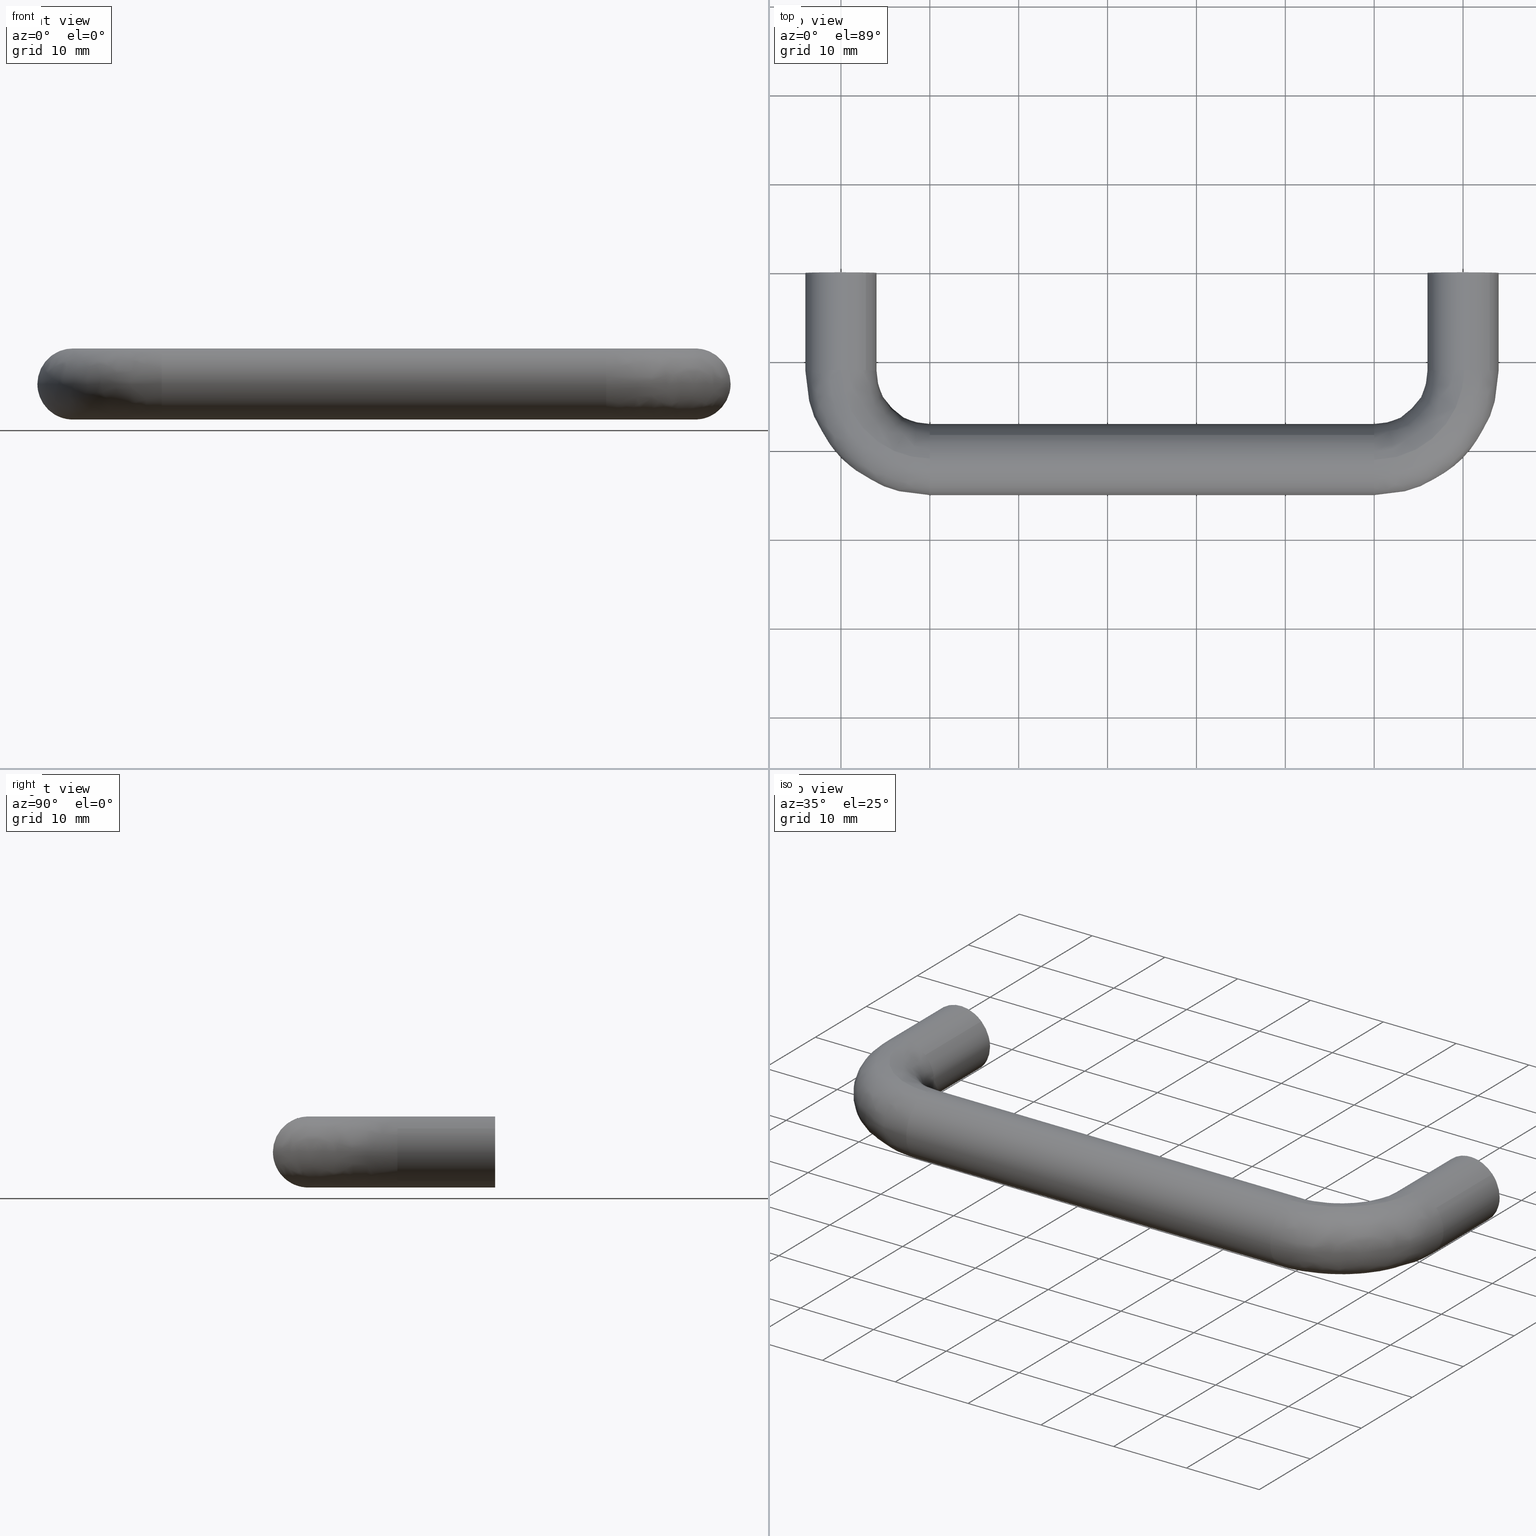
[diagram: canonical four-view strip — front | top / right | iso, engineering-drawing reading convention]
A machine part, canonical four-view strip (front | top / right | iso — engineering-drawing reading convention). The complete STEP part file that produces these views, byte-faithful:
ISO-10303-21;
HEADER;
/****************************************************************
 * Generated by software with PDE/Lib inside                    *
 * PDElib Version 4.4.1-0003, patched  Thursday August 19 11:58 *
 * International Technegroup Inc. (www.iti-oh.com)              *
 ****************************************************************/
FILE_DESCRIPTION((''),'2;1');
FILE_NAME('','2005-10-07T12:41:16',(''),(''),'','CADfix','');
FILE_SCHEMA(('AUTOMOTIVE_DESIGN'));
ENDSEC;
DATA;
#5=APPLICATION_CONTEXT('automotive design');
#6=APPLICATION_PROTOCOL_DEFINITION('Draft International Standard','automotive_design',1998,#5);
#7=PRODUCT_CONTEXT('None',#5,'mechanical');
#8=PRODUCT('pull','','None',(#7));
#9=PRODUCT_RELATED_PRODUCT_CATEGORY('part','description',(#8));
#10=PRODUCT_DEFINITION_FORMATION('None','None',#8);
#11=PRODUCT_DEFINITION_CONTEXT('part definition',#5,'design');
#12=PRODUCT_DEFINITION('None','None',#10,#11);
#18=(NAMED_UNIT(*)PLANE_ANGLE_UNIT()SI_UNIT($,.RADIAN.));
#19=DIMENSIONAL_EXPONENTS(0.0,0.0,0.0,0.0,0.0,0.0,0.0);
#20=PLANE_ANGLE_MEASURE_WITH_UNIT(PLANE_ANGLE_MEASURE(0.017453292500000),#18);
#24=(CONVERSION_BASED_UNIT('DEGREE',#20)NAMED_UNIT(#19)PLANE_ANGLE_UNIT());
#28=(NAMED_UNIT(*)SI_UNIT($,.STERADIAN.)SOLID_ANGLE_UNIT());
#32=(LENGTH_UNIT()NAMED_UNIT(*)SI_UNIT(.MILLI.,.METRE.));
#34=UNCERTAINTY_MEASURE_WITH_UNIT(LENGTH_MEASURE(0.001000000000000),#32,'DISTANCE_ACCURACY_VALUE','');
#36=(GEOMETRIC_REPRESENTATION_CONTEXT(3)GLOBAL_UNCERTAINTY_ASSIGNED_CONTEXT((#34))GLOBAL_UNIT_ASSIGNED_CONTEXT((#24,#28,#32))REPRESENTATION_CONTEXT('None','None'));
#37=AXIS2_PLACEMENT_3D('',#38,#39,#40);
#38=CARTESIAN_POINT('',(0.0,0.0,0.0));
#39=DIRECTION('',(0.0,0.0,1.0));
#40=DIRECTION('',(1.0,0.0,0.0));
#41=ADVANCED_BREP_SHAPE_REPRESENTATION('',(#37,#1345),#36);
#42=PRODUCT_DEFINITION_SHAPE('','',#12);
#43=SHAPE_DEFINITION_REPRESENTATION(#42,#41);
#44=CARTESIAN_POINT('',(-2.492293334332819,-10.250000000000000,0.196147739319614));
#45=CARTESIAN_POINT('',(-2.296145595013206,-10.250000000000002,2.688441073652433));
#46=CARTESIAN_POINT('',(0.196147739319614,-10.250000000000000,2.492293334332819));
#47=CARTESIAN_POINT('',(2.688441073652433,-10.250000000000002,2.296145595013206));
#48=CARTESIAN_POINT('',(2.492293334332819,-10.250000000000000,-0.196147739319614));
#49=CARTESIAN_POINT('',(-2.492293334332819,0.256250000000001,0.196147739319614));
#50=CARTESIAN_POINT('',(-2.296145595013206,0.256250000000001,2.688441073652433));
#51=CARTESIAN_POINT('',(0.196147739319614,0.256250000000001,2.492293334332819));
#52=CARTESIAN_POINT('',(2.688441073652433,0.256250000000001,2.296145595013206));
#53=CARTESIAN_POINT('',(2.492293334332819,0.256250000000001,-0.196147739319614));
#61=(BOUNDED_SURFACE()B_SPLINE_SURFACE(2,1,((#44,#49),(#45,#50),(#46,#51),(#47,#52),(#48,#53)),.UNSPECIFIED.,.F.,.F.,.U.)B_SPLINE_SURFACE_WITH_KNOTS((3,2,3),(2,2),(0.0,4.142135623730949,8.284271247461899),(0.0,10.506250000000000),.UNSPECIFIED.)GEOMETRIC_REPRESENTATION_ITEM()RATIONAL_B_SPLINE_SURFACE(((1.0,1.0),(0.707106781186548,0.707106781186548),(1.0,1.0),(0.707106781186548,0.707106781186548),(1.0,1.0)))REPRESENTATION_ITEM('')SURFACE());
#62=CARTESIAN_POINT('',(0.0,-10.0,2.500000000000000));
#63=VERTEX_POINT('',#62);
#64=CARTESIAN_POINT('',(-2.492293334330208,-10.0,0.196147739352795));
#65=VERTEX_POINT('',#64);
#66=CARTESIAN_POINT('',(0.0,-10.0,2.500000000000000));
#67=CARTESIAN_POINT('',(-2.310976229083793,-10.0,2.500000000000000));
#68=CARTESIAN_POINT('',(-2.492293334330208,-10.0,0.196147739352795));
#76=(BOUNDED_CURVE()B_SPLINE_CURVE(2,(#66,#67,#68),.UNSPECIFIED.,.F.,.U.)B_SPLINE_CURVE_WITH_KNOTS((3,3),(0.0,0.236331300628202),.UNSPECIFIED.)CURVE()GEOMETRIC_REPRESENTATION_ITEM()RATIONAL_B_SPLINE_CURVE((1.0,0.723120658610544,0.969723356162290))REPRESENTATION_ITEM(''));
#77=EDGE_CURVE('',#63,#65,#76,.T.);
#78=ORIENTED_EDGE('',*,*,#77,.T.);
#79=CARTESIAN_POINT('',(-2.492293334330208,-2.775558E-017,0.196147739352795));
#80=VERTEX_POINT('',#79);
#81=CARTESIAN_POINT('',(-2.492293334330208,-10.0,0.196147739352795));
#82=CARTESIAN_POINT('',(-2.492293334330208,-2.775558E-017,0.196147739352795));
#83=QUASI_UNIFORM_CURVE('',1,(#81,#82),.UNSPECIFIED.,.F.,.U.);
#84=EDGE_CURVE('',#65,#80,#83,.T.);
#85=ORIENTED_EDGE('',*,*,#84,.T.);
#86=CARTESIAN_POINT('',(0.0,0.0,2.500000000000000));
#87=VERTEX_POINT('',#86);
#88=CARTESIAN_POINT('',(0.0,0.0,2.500000000000000));
#89=CARTESIAN_POINT('',(-2.310976229083793,0.0,2.500000000000000));
#90=CARTESIAN_POINT('',(-2.492293334330208,-2.775558E-017,0.196147739352795));
#98=(BOUNDED_CURVE()B_SPLINE_CURVE(2,(#88,#89,#90),.UNSPECIFIED.,.F.,.U.)B_SPLINE_CURVE_WITH_KNOTS((3,3),(0.0,0.236331300628202),.UNSPECIFIED.)CURVE()GEOMETRIC_REPRESENTATION_ITEM()RATIONAL_B_SPLINE_CURVE((1.0,0.723120658610544,0.969723356162290))REPRESENTATION_ITEM(''));
#99=EDGE_CURVE('',#87,#80,#98,.T.);
#100=ORIENTED_EDGE('',*,*,#99,.F.);
#101=CARTESIAN_POINT('',(2.492293334330208,-2.775558E-017,-0.196147739352795));
#102=VERTEX_POINT('',#101);
#103=CARTESIAN_POINT('',(2.492293334330209,-2.775558E-017,-0.196147739352795));
#104=CARTESIAN_POINT('',(2.500000000000000,0.0,-0.098225267552510));
#105=CARTESIAN_POINT('',(2.500000000000000,0.0,0.0));
#106=CARTESIAN_POINT('',(2.500000000000000,0.0,2.500000000000000));
#107=CARTESIAN_POINT('',(0.0,0.0,2.500000000000000));
#115=(BOUNDED_CURVE()B_SPLINE_CURVE(2,(#103,#104,#105,#106,#107),.UNSPECIFIED.,.F.,.U.)B_SPLINE_CURVE_WITH_KNOTS((3,2,3),(0.736331300628202,0.750000000000000,1.0),.UNSPECIFIED.)CURVE()GEOMETRIC_REPRESENTATION_ITEM()RATIONAL_B_SPLINE_CURVE((0.969723356162290,0.983986122576003,1.0,0.707106781186548,1.0))REPRESENTATION_ITEM(''));
#116=EDGE_CURVE('',#102,#87,#115,.T.);
#117=ORIENTED_EDGE('',*,*,#116,.F.);
#118=CARTESIAN_POINT('',(2.492293334330208,-10.0,-0.196147739352795));
#119=VERTEX_POINT('',#118);
#120=CARTESIAN_POINT('',(2.492293334330208,-10.0,-0.196147739352795));
#121=CARTESIAN_POINT('',(2.492293334330208,-2.775558E-017,-0.196147739352795));
#122=QUASI_UNIFORM_CURVE('',1,(#120,#121),.UNSPECIFIED.,.F.,.U.);
#123=EDGE_CURVE('',#119,#102,#122,.T.);
#124=ORIENTED_EDGE('',*,*,#123,.F.);
#125=CARTESIAN_POINT('',(2.492293334330209,-9.999999999999998,-0.196147739352795));
#126=CARTESIAN_POINT('',(2.500000000000000,-9.999999999999998,-0.098225267552510));
#127=CARTESIAN_POINT('',(2.500000000000000,-10.0,0.0));
#128=CARTESIAN_POINT('',(2.500000000000000,-10.000000000000002,2.500000000000000));
#129=CARTESIAN_POINT('',(0.0,-10.0,2.500000000000000));
#137=(BOUNDED_CURVE()B_SPLINE_CURVE(2,(#125,#126,#127,#128,#129),.UNSPECIFIED.,.F.,.U.)B_SPLINE_CURVE_WITH_KNOTS((3,2,3),(0.736331300628202,0.750000000000000,1.0),.UNSPECIFIED.)CURVE()GEOMETRIC_REPRESENTATION_ITEM()RATIONAL_B_SPLINE_CURVE((0.969723356162290,0.983986122576003,1.0,0.707106781186548,1.0))REPRESENTATION_ITEM(''));
#138=EDGE_CURVE('',#119,#63,#137,.T.);
#139=ORIENTED_EDGE('',*,*,#138,.T.);
#140=EDGE_LOOP('',(#78,#85,#100,#117,#124,#139));
#141=FACE_OUTER_BOUND('',#140,.T.);
#142=ADVANCED_FACE('',(#141),#61,.F.);
#143=CARTESIAN_POINT('',(2.492293334332819,-10.250000000000000,-0.196147739319614));
#144=CARTESIAN_POINT('',(2.296145595013206,-10.250000000000002,-2.688441073652433));
#145=CARTESIAN_POINT('',(-0.196147739319614,-10.250000000000000,-2.492293334332819));
#146=CARTESIAN_POINT('',(-2.688441073652433,-10.250000000000002,-2.296145595013206));
#147=CARTESIAN_POINT('',(-2.492293334332819,-10.250000000000000,0.196147739319614));
#148=CARTESIAN_POINT('',(2.492293334332819,0.256250000000001,-0.196147739319614));
#149=CARTESIAN_POINT('',(2.296145595013206,0.256250000000001,-2.688441073652433));
#150=CARTESIAN_POINT('',(-0.196147739319614,0.256250000000001,-2.492293334332819));
#151=CARTESIAN_POINT('',(-2.688441073652433,0.256250000000001,-2.296145595013206));
#152=CARTESIAN_POINT('',(-2.492293334332819,0.256250000000001,0.196147739319614));
#160=(BOUNDED_SURFACE()B_SPLINE_SURFACE(2,1,((#143,#148),(#144,#149),(#145,#150),(#146,#151),(#147,#152)),.UNSPECIFIED.,.F.,.F.,.U.)B_SPLINE_SURFACE_WITH_KNOTS((3,2,3),(2,2),(0.0,4.142135623730949,8.284271247461899),(0.0,10.506250000000000),.UNSPECIFIED.)GEOMETRIC_REPRESENTATION_ITEM()RATIONAL_B_SPLINE_SURFACE(((1.0,1.0),(0.707106781186548,0.707106781186548),(1.0,1.0),(0.707106781186548,0.707106781186548),(1.0,1.0)))REPRESENTATION_ITEM('')SURFACE());
#161=CARTESIAN_POINT('',(0.0,-10.0,-2.500000000000000));
#162=VERTEX_POINT('',#161);
#163=CARTESIAN_POINT('',(-2.492293334330209,-9.999999999999998,0.196147739352795));
#164=CARTESIAN_POINT('',(-2.500000000000000,-10.0,0.098225267552510));
#165=CARTESIAN_POINT('',(-2.500000000000000,-10.0,0.0));
#166=CARTESIAN_POINT('',(-2.500000000000000,-10.000000000000002,-2.500000000000000));
#167=CARTESIAN_POINT('',(0.0,-10.0,-2.500000000000000));
#175=(BOUNDED_CURVE()B_SPLINE_CURVE(2,(#163,#164,#165,#166,#167),.UNSPECIFIED.,.F.,.U.)B_SPLINE_CURVE_WITH_KNOTS((3,2,3),(0.236331300628202,0.250000000000000,0.500000000000000),.UNSPECIFIED.)CURVE()GEOMETRIC_REPRESENTATION_ITEM()RATIONAL_B_SPLINE_CURVE((0.969723356162290,0.983986122576003,1.0,0.707106781186548,1.0))REPRESENTATION_ITEM(''));
#176=EDGE_CURVE('',#65,#162,#175,.T.);
#177=ORIENTED_EDGE('',*,*,#176,.T.);
#178=CARTESIAN_POINT('',(0.0,-10.0,-2.500000000000000));
#179=CARTESIAN_POINT('',(2.310976229083803,-10.0,-2.500000000000000));
#180=CARTESIAN_POINT('',(2.492293334330208,-10.0,-0.196147739352795));
#188=(BOUNDED_CURVE()B_SPLINE_CURVE(2,(#178,#179,#180),.UNSPECIFIED.,.F.,.U.)B_SPLINE_CURVE_WITH_KNOTS((3,3),(0.500000000000000,0.736331300628203),.UNSPECIFIED.)CURVE()GEOMETRIC_REPRESENTATION_ITEM()RATIONAL_B_SPLINE_CURVE((1.0,0.723120658610544,0.969723356162291))REPRESENTATION_ITEM(''));
#189=EDGE_CURVE('',#162,#119,#188,.T.);
#190=ORIENTED_EDGE('',*,*,#189,.T.);
#191=ORIENTED_EDGE('',*,*,#123,.T.);
#192=CARTESIAN_POINT('',(0.0,0.0,-2.500000000000000));
#193=VERTEX_POINT('',#192);
#194=CARTESIAN_POINT('',(0.0,0.0,-2.500000000000000));
#195=CARTESIAN_POINT('',(2.310976229083803,0.0,-2.500000000000000));
#196=CARTESIAN_POINT('',(2.492293334330208,-2.775558E-017,-0.196147739352795));
#204=(BOUNDED_CURVE()B_SPLINE_CURVE(2,(#194,#195,#196),.UNSPECIFIED.,.F.,.U.)B_SPLINE_CURVE_WITH_KNOTS((3,3),(0.500000000000000,0.736331300628203),.UNSPECIFIED.)CURVE()GEOMETRIC_REPRESENTATION_ITEM()RATIONAL_B_SPLINE_CURVE((1.0,0.723120658610544,0.969723356162291))REPRESENTATION_ITEM(''));
#205=EDGE_CURVE('',#193,#102,#204,.T.);
#206=ORIENTED_EDGE('',*,*,#205,.F.);
#207=CARTESIAN_POINT('',(-2.492293334330209,-2.775558E-017,0.196147739352795));
#208=CARTESIAN_POINT('',(-2.500000000000000,0.0,0.098225267552510));
#209=CARTESIAN_POINT('',(-2.500000000000000,0.0,0.0));
#210=CARTESIAN_POINT('',(-2.500000000000000,0.0,-2.500000000000000));
#211=CARTESIAN_POINT('',(0.0,0.0,-2.500000000000000));
#219=(BOUNDED_CURVE()B_SPLINE_CURVE(2,(#207,#208,#209,#210,#211),.UNSPECIFIED.,.F.,.U.)B_SPLINE_CURVE_WITH_KNOTS((3,2,3),(0.236331300628202,0.250000000000000,0.500000000000000),.UNSPECIFIED.)CURVE()GEOMETRIC_REPRESENTATION_ITEM()RATIONAL_B_SPLINE_CURVE((0.969723356162290,0.983986122576003,1.0,0.707106781186548,1.0))REPRESENTATION_ITEM(''));
#220=EDGE_CURVE('',#80,#193,#219,.T.);
#221=ORIENTED_EDGE('',*,*,#220,.F.);
#222=ORIENTED_EDGE('',*,*,#84,.F.);
#223=EDGE_LOOP('',(#177,#190,#191,#206,#221,#222));
#224=FACE_OUTER_BOUND('',#223,.T.);
#225=ADVANCED_FACE('',(#224),#160,.F.);
#226=CARTESIAN_POINT('',(67.507706665667186,-10.250000000000000,0.196147739319614));
#227=CARTESIAN_POINT('',(67.703854404986799,-10.250000000000002,2.688441073652433));
#228=CARTESIAN_POINT('',(70.196147739319613,-10.250000000000000,2.492293334332819));
#229=CARTESIAN_POINT('',(72.688441073652427,-10.250000000000002,2.296145595013206));
#230=CARTESIAN_POINT('',(72.492293334332814,-10.250000000000000,-0.196147739319614));
#231=CARTESIAN_POINT('',(67.507706665667186,0.256250000000001,0.196147739319614));
#232=CARTESIAN_POINT('',(67.703854404986799,0.256250000000001,2.688441073652433));
#233=CARTESIAN_POINT('',(70.196147739319613,0.256250000000001,2.492293334332819));
#234=CARTESIAN_POINT('',(72.688441073652427,0.256250000000001,2.296145595013206));
#235=CARTESIAN_POINT('',(72.492293334332814,0.256250000000001,-0.196147739319614));
#243=(BOUNDED_SURFACE()B_SPLINE_SURFACE(2,1,((#226,#231),(#227,#232),(#228,#233),(#229,#234),(#230,#235)),.UNSPECIFIED.,.F.,.F.,.U.)B_SPLINE_SURFACE_WITH_KNOTS((3,2,3),(2,2),(0.0,4.142135623730946,8.284271247461891),(0.0,10.506250000000000),.UNSPECIFIED.)GEOMETRIC_REPRESENTATION_ITEM()RATIONAL_B_SPLINE_SURFACE(((1.0,1.0),(0.707106781186548,0.707106781186548),(1.0,1.0),(0.707106781186548,0.707106781186548),(1.0,1.0)))REPRESENTATION_ITEM('')SURFACE());
#244=CARTESIAN_POINT('',(70.0,-10.0,2.500000000000000));
#245=VERTEX_POINT('',#244);
#246=CARTESIAN_POINT('',(67.507706665669787,-10.0,0.196147739352795));
#247=VERTEX_POINT('',#246);
#248=CARTESIAN_POINT('',(70.0,-10.0,2.500000000000000));
#249=CARTESIAN_POINT('',(67.689023770916208,-10.0,2.500000000000000));
#250=CARTESIAN_POINT('',(67.507706665669787,-10.0,0.196147739352795));
#258=(BOUNDED_CURVE()B_SPLINE_CURVE(2,(#248,#249,#250),.UNSPECIFIED.,.F.,.U.)B_SPLINE_CURVE_WITH_KNOTS((3,3),(0.0,0.236331300628202),.UNSPECIFIED.)CURVE()GEOMETRIC_REPRESENTATION_ITEM()RATIONAL_B_SPLINE_CURVE((1.0,0.723120658610545,0.969723356162289))REPRESENTATION_ITEM(''));
#259=EDGE_CURVE('',#245,#247,#258,.T.);
#260=ORIENTED_EDGE('',*,*,#259,.T.);
#261=CARTESIAN_POINT('',(67.507706665669787,-2.775558E-017,0.196147739352795));
#262=VERTEX_POINT('',#261);
#263=CARTESIAN_POINT('',(67.507706665669787,-10.0,0.196147739352795));
#264=CARTESIAN_POINT('',(67.507706665669787,-2.775558E-017,0.196147739352795));
#265=QUASI_UNIFORM_CURVE('',1,(#263,#264),.UNSPECIFIED.,.F.,.U.);
#266=EDGE_CURVE('',#247,#262,#265,.T.);
#267=ORIENTED_EDGE('',*,*,#266,.T.);
#268=CARTESIAN_POINT('',(70.0,0.0,2.500000000000000));
#269=VERTEX_POINT('',#268);
#270=CARTESIAN_POINT('',(70.0,0.0,2.500000000000000));
#271=CARTESIAN_POINT('',(67.689023770916208,0.0,2.500000000000000));
#272=CARTESIAN_POINT('',(67.507706665669787,-2.775558E-017,0.196147739352795));
#280=(BOUNDED_CURVE()B_SPLINE_CURVE(2,(#270,#271,#272),.UNSPECIFIED.,.F.,.U.)B_SPLINE_CURVE_WITH_KNOTS((3,3),(0.0,0.236331300628202),.UNSPECIFIED.)CURVE()GEOMETRIC_REPRESENTATION_ITEM()RATIONAL_B_SPLINE_CURVE((1.0,0.723120658610544,0.969723356162290))REPRESENTATION_ITEM(''));
#281=EDGE_CURVE('',#269,#262,#280,.T.);
#282=ORIENTED_EDGE('',*,*,#281,.F.);
#283=CARTESIAN_POINT('',(72.492293334330213,-2.775558E-017,-0.196147739352796));
#284=VERTEX_POINT('',#283);
#285=CARTESIAN_POINT('',(72.492293334330213,-2.775558E-017,-0.196147739352796));
#286=CARTESIAN_POINT('',(72.500000000000014,0.0,-0.098225267552511));
#287=CARTESIAN_POINT('',(72.500000000000014,0.0,0.0));
#288=CARTESIAN_POINT('',(72.500000000000014,0.0,2.500000000000000));
#289=CARTESIAN_POINT('',(70.0,0.0,2.500000000000000));
#297=(BOUNDED_CURVE()B_SPLINE_CURVE(2,(#285,#286,#287,#288,#289),.UNSPECIFIED.,.F.,.U.)B_SPLINE_CURVE_WITH_KNOTS((3,2,3),(0.736331300628202,0.750000000000000,1.0),.UNSPECIFIED.)CURVE()GEOMETRIC_REPRESENTATION_ITEM()RATIONAL_B_SPLINE_CURVE((0.969723356162289,0.983986122576003,1.0,0.707106781186548,1.0))REPRESENTATION_ITEM(''));
#298=EDGE_CURVE('',#284,#269,#297,.T.);
#299=ORIENTED_EDGE('',*,*,#298,.F.);
#300=CARTESIAN_POINT('',(72.492293334330213,-9.999999999999998,-0.196147739352795));
#301=VERTEX_POINT('',#300);
#302=CARTESIAN_POINT('',(72.492293334330213,-9.999999999999998,-0.196147739352795));
#303=CARTESIAN_POINT('',(72.492293334330213,-2.775558E-017,-0.196147739352796));
#304=QUASI_UNIFORM_CURVE('',1,(#302,#303),.UNSPECIFIED.,.F.,.U.);
#305=EDGE_CURVE('',#301,#284,#304,.T.);
#306=ORIENTED_EDGE('',*,*,#305,.F.);
#307=CARTESIAN_POINT('',(72.492293334330213,-9.999999999999998,-0.196147739352795));
#308=CARTESIAN_POINT('',(72.500000000000000,-9.999999999999998,-0.098225267552510));
#309=CARTESIAN_POINT('',(72.500000000000014,-10.0,0.0));
#310=CARTESIAN_POINT('',(72.500000000000014,-10.000000000000002,2.500000000000000));
#311=CARTESIAN_POINT('',(70.0,-10.0,2.500000000000000));
#319=(BOUNDED_CURVE()B_SPLINE_CURVE(2,(#307,#308,#309,#310,#311),.UNSPECIFIED.,.F.,.U.)B_SPLINE_CURVE_WITH_KNOTS((3,2,3),(0.736331300628202,0.750000000000000,1.0),.UNSPECIFIED.)CURVE()GEOMETRIC_REPRESENTATION_ITEM()RATIONAL_B_SPLINE_CURVE((0.969723356162290,0.983986122576003,1.0,0.707106781186548,1.0))REPRESENTATION_ITEM(''));
#320=EDGE_CURVE('',#301,#245,#319,.T.);
#321=ORIENTED_EDGE('',*,*,#320,.T.);
#322=EDGE_LOOP('',(#260,#267,#282,#299,#306,#321));
#323=FACE_OUTER_BOUND('',#322,.T.);
#324=ADVANCED_FACE('',(#323),#243,.F.);
#325=CARTESIAN_POINT('',(72.492293334332814,-10.250000000000000,-0.196147739319614));
#326=CARTESIAN_POINT('',(72.296145595013215,-10.250000000000002,-2.688441073652433));
#327=CARTESIAN_POINT('',(69.803852260680387,-10.250000000000000,-2.492293334332819));
#328=CARTESIAN_POINT('',(67.311558926347573,-10.250000000000002,-2.296145595013206));
#329=CARTESIAN_POINT('',(67.507706665667186,-10.250000000000000,0.196147739319614));
#330=CARTESIAN_POINT('',(72.492293334332814,0.256250000000001,-0.196147739319614));
#331=CARTESIAN_POINT('',(72.296145595013215,0.256250000000001,-2.688441073652433));
#332=CARTESIAN_POINT('',(69.803852260680387,0.256250000000001,-2.492293334332819));
#333=CARTESIAN_POINT('',(67.311558926347573,0.256250000000001,-2.296145595013206));
#334=CARTESIAN_POINT('',(67.507706665667186,0.256250000000001,0.196147739319614));
#342=(BOUNDED_SURFACE()B_SPLINE_SURFACE(2,1,((#325,#330),(#326,#331),(#327,#332),(#328,#333),(#329,#334)),.UNSPECIFIED.,.F.,.F.,.U.)B_SPLINE_SURFACE_WITH_KNOTS((3,2,3),(2,2),(0.0,4.142135623730946,8.284271247461891),(0.0,10.506250000000000),.UNSPECIFIED.)GEOMETRIC_REPRESENTATION_ITEM()RATIONAL_B_SPLINE_SURFACE(((1.0,1.0),(0.707106781186548,0.707106781186548),(1.0,1.0),(0.707106781186548,0.707106781186548),(1.0,1.0)))REPRESENTATION_ITEM('')SURFACE());
#343=CARTESIAN_POINT('',(70.0,-10.0,-2.500000000000000));
#344=VERTEX_POINT('',#343);
#345=CARTESIAN_POINT('',(67.507706665669787,-10.0,0.196147739352795));
#346=CARTESIAN_POINT('',(67.500000000000000,-9.999999999999998,0.098225267552510));
#347=CARTESIAN_POINT('',(67.500000000000000,-10.0,0.0));
#348=CARTESIAN_POINT('',(67.500000000000000,-10.000000000000002,-2.500000000000000));
#349=CARTESIAN_POINT('',(70.0,-10.0,-2.500000000000000));
#357=(BOUNDED_CURVE()B_SPLINE_CURVE(2,(#345,#346,#347,#348,#349),.UNSPECIFIED.,.F.,.U.)B_SPLINE_CURVE_WITH_KNOTS((3,2,3),(0.236331300628202,0.250000000000000,0.500000000000000),.UNSPECIFIED.)CURVE()GEOMETRIC_REPRESENTATION_ITEM()RATIONAL_B_SPLINE_CURVE((0.969723356162289,0.983986122576003,1.0,0.707106781186548,1.0))REPRESENTATION_ITEM(''));
#358=EDGE_CURVE('',#247,#344,#357,.T.);
#359=ORIENTED_EDGE('',*,*,#358,.T.);
#360=CARTESIAN_POINT('',(70.0,-10.0,-2.500000000000000));
#361=CARTESIAN_POINT('',(72.310976229083820,-10.0,-2.500000000000000));
#362=CARTESIAN_POINT('',(72.492293334330213,-9.999999999999998,-0.196147739352795));
#370=(BOUNDED_CURVE()B_SPLINE_CURVE(2,(#360,#361,#362),.UNSPECIFIED.,.F.,.U.)B_SPLINE_CURVE_WITH_KNOTS((3,3),(0.500000000000000,0.736331300628203),.UNSPECIFIED.)CURVE()GEOMETRIC_REPRESENTATION_ITEM()RATIONAL_B_SPLINE_CURVE((1.0,0.723120658610544,0.969723356162291))REPRESENTATION_ITEM(''));
#371=EDGE_CURVE('',#344,#301,#370,.T.);
#372=ORIENTED_EDGE('',*,*,#371,.T.);
#373=ORIENTED_EDGE('',*,*,#305,.T.);
#374=CARTESIAN_POINT('',(70.0,0.0,-2.500000000000000));
#375=VERTEX_POINT('',#374);
#376=CARTESIAN_POINT('',(70.0,0.0,-2.500000000000000));
#377=CARTESIAN_POINT('',(72.310976229083820,0.0,-2.500000000000000));
#378=CARTESIAN_POINT('',(72.492293334330213,-2.775558E-017,-0.196147739352796));
#386=(BOUNDED_CURVE()B_SPLINE_CURVE(2,(#376,#377,#378),.UNSPECIFIED.,.F.,.U.)B_SPLINE_CURVE_WITH_KNOTS((3,3),(0.500000000000000,0.736331300628203),.UNSPECIFIED.)CURVE()GEOMETRIC_REPRESENTATION_ITEM()RATIONAL_B_SPLINE_CURVE((1.0,0.723120658610544,0.969723356162291))REPRESENTATION_ITEM(''));
#387=EDGE_CURVE('',#375,#284,#386,.T.);
#388=ORIENTED_EDGE('',*,*,#387,.F.);
#389=CARTESIAN_POINT('',(67.507706665669787,-2.775558E-017,0.196147739352795));
#390=CARTESIAN_POINT('',(67.499999999999986,0.0,0.098225267552510));
#391=CARTESIAN_POINT('',(67.500000000000000,0.0,0.0));
#392=CARTESIAN_POINT('',(67.500000000000000,0.0,-2.500000000000000));
#393=CARTESIAN_POINT('',(70.0,0.0,-2.500000000000000));
#401=(BOUNDED_CURVE()B_SPLINE_CURVE(2,(#389,#390,#391,#392,#393),.UNSPECIFIED.,.F.,.U.)B_SPLINE_CURVE_WITH_KNOTS((3,2,3),(0.236331300628202,0.250000000000000,0.500000000000000),.UNSPECIFIED.)CURVE()GEOMETRIC_REPRESENTATION_ITEM()RATIONAL_B_SPLINE_CURVE((0.969723356162290,0.983986122576003,1.0,0.707106781186548,1.0))REPRESENTATION_ITEM(''));
#402=EDGE_CURVE('',#262,#375,#401,.T.);
#403=ORIENTED_EDGE('',*,*,#402,.F.);
#404=ORIENTED_EDGE('',*,*,#266,.F.);
#405=EDGE_LOOP('',(#359,#372,#373,#388,#403,#404));
#406=FACE_OUTER_BOUND('',#405,.T.);
#407=ADVANCED_FACE('',(#406),#342,.F.);
#408=CARTESIAN_POINT('',(72.286842443536059,-11.275000000633128,-3.281821390393139));
#409=CARTESIAN_POINT('',(69.364407731794628,-11.275000000633124,-5.318235607460819));
#410=CARTESIAN_POINT('',(67.004177116843991,-11.275000000633121,-2.650480192862948));
#411=CARTESIAN_POINT('',(64.353696923981062,-11.275000000633122,0.345342690293061));
#412=CARTESIAN_POINT('',(67.349519807137057,-11.275000000633121,2.995822883156009));
#413=CARTESIAN_POINT('',(70.345342690293080,-11.275000000633122,5.646303076018955));
#414=CARTESIAN_POINT('',(72.995822883156009,-11.275000000633121,2.650480192862948));
#415=CARTESIAN_POINT('',(72.286842443536059,0.281875000015837,-3.281821390393139));
#416=CARTESIAN_POINT('',(69.364407731794628,0.281875000015837,-5.318235607460819));
#417=CARTESIAN_POINT('',(67.004177116843991,0.281875000015837,-2.650480192862948));
#418=CARTESIAN_POINT('',(64.353696923981062,0.281875000015837,0.345342690293061));
#419=CARTESIAN_POINT('',(67.349519807137057,0.281875000015837,2.995822883156009));
#420=CARTESIAN_POINT('',(70.345342690293080,0.281875000015838,5.646303076018955));
#421=CARTESIAN_POINT('',(72.995822883156009,0.281875000015838,2.650480192862948));
#429=(BOUNDED_SURFACE()B_SPLINE_SURFACE(2,1,((#408,#415),(#409,#416),(#410,#417),(#411,#418),(#412,#419),(#413,#420),(#414,#421)),.UNSPECIFIED.,.F.,.F.,.U.)B_SPLINE_SURFACE_WITH_KNOTS((3,2,2,3),(2,2),(0.0,6.097223638131956,12.724640636101469,19.352057634070992),(0.0,11.556875000648960),.UNSPECIFIED.)GEOMETRIC_REPRESENTATION_ITEM()RATIONAL_B_SPLINE_SURFACE(((0.956886118190660,0.956886118190660),(0.730538238691624,0.730538238691624),(1.0,1.0),(0.707106781186548,0.707106781186548),(1.0,1.0),(0.707106781186548,0.707106781186548),(1.0,1.0)))REPRESENTATION_ITEM('')SURFACE());
#430=CARTESIAN_POINT('',(69.899479617896844,-11.000000000284841,-3.998736757124909));
#431=VERTEX_POINT('',#430);
#432=CARTESIAN_POINT('',(72.286842443538333,-11.0,-3.281821390391567));
#433=VERTEX_POINT('',#432);
#434=CARTESIAN_POINT('',(69.899479617896844,-11.000000000284842,-3.998736757124909));
#435=CARTESIAN_POINT('',(69.949731871176525,-10.999999999999996,-4.000000000000001));
#436=CARTESIAN_POINT('',(70.0,-11.0,-4.0));
#437=CARTESIAN_POINT('',(71.256192549055712,-10.999999999999998,-4.000000000000001));
#438=CARTESIAN_POINT('',(72.286842443538333,-11.000000000000002,-3.281821390391567));
#446=(BOUNDED_CURVE()B_SPLINE_CURVE(2,(#434,#435,#436,#437,#438),.UNSPECIFIED.,.F.,.U.)B_SPLINE_CURVE_WITH_KNOTS((3,2,3),(0.245579891740944,0.250000000000000,0.348251884123429),.UNSPECIFIED.)CURVE()GEOMETRIC_REPRESENTATION_ITEM()RATIONAL_B_SPLINE_CURVE((0.989826157616337,0.994821521058005,1.0,0.884890757618410,0.860259114788914))REPRESENTATION_ITEM(''));
#447=EDGE_CURVE('',#431,#433,#446,.T.);
#448=ORIENTED_EDGE('',*,*,#447,.F.);
#449=CARTESIAN_POINT('',(66.0,-11.0,0.0));
#450=VERTEX_POINT('',#449);
#451=CARTESIAN_POINT('',(66.0,-11.0,0.0));
#452=CARTESIAN_POINT('',(65.999999999999986,-11.0,-3.900711504078954));
#453=CARTESIAN_POINT('',(69.899479617896844,-11.000000000284837,-3.998736757124909));
#461=(BOUNDED_CURVE()B_SPLINE_CURVE(2,(#451,#452,#453),.UNSPECIFIED.,.F.,.U.)B_SPLINE_CURVE_WITH_KNOTS((3,3),(0.0,0.245579891740944),.UNSPECIFIED.)CURVE()GEOMETRIC_REPRESENTATION_ITEM()RATIONAL_B_SPLINE_CURVE((1.0,0.712285260128543,0.989826157616337))REPRESENTATION_ITEM(''));
#462=EDGE_CURVE('',#450,#431,#461,.T.);
#463=ORIENTED_EDGE('',*,*,#462,.F.);
#464=CARTESIAN_POINT('',(70.100520384497344,-11.000000000617680,3.998736757064723));
#465=VERTEX_POINT('',#464);
#466=CARTESIAN_POINT('',(70.100520384497344,-11.000000000617685,3.998736757064723));
#467=CARTESIAN_POINT('',(70.050268131218800,-10.999999999999996,4.000000000000000));
#468=CARTESIAN_POINT('',(70.0,-11.0,4.0));
#469=CARTESIAN_POINT('',(66.0,-11.0,4.000000000000000));
#470=CARTESIAN_POINT('',(66.0,-11.0,0.0));
#478=(BOUNDED_CURVE()B_SPLINE_CURVE(2,(#466,#467,#468,#469,#470),.UNSPECIFIED.,.F.,.U.)B_SPLINE_CURVE_WITH_KNOTS((3,2,3),(0.745579891531413,0.750000000000000,1.0),.UNSPECIFIED.)CURVE()GEOMETRIC_REPRESENTATION_ITEM()RATIONAL_B_SPLINE_CURVE((0.989826157142735,0.994821520812524,1.0,0.707106781186548,1.0))REPRESENTATION_ITEM(''));
#479=EDGE_CURVE('',#465,#450,#478,.T.);
#480=ORIENTED_EDGE('',*,*,#479,.F.);
#481=CARTESIAN_POINT('',(72.995823056830687,-11.000000000159060,2.650479996171793));
#482=VERTEX_POINT('',#481);
#483=CARTESIAN_POINT('',(72.995823056830702,-11.000000000159060,2.650479996171793));
#484=CARTESIAN_POINT('',(71.841711066837405,-11.000000000341874,3.954966643588575));
#485=CARTESIAN_POINT('',(70.100520384497344,-11.000000000617677,3.998736757064723));
#493=(BOUNDED_CURVE()B_SPLINE_CURVE(2,(#483,#484,#485),.UNSPECIFIED.,.F.,.U.)B_SPLINE_CURVE_WITH_KNOTS((3,3),(0.615779868226999,0.745579891531413),.UNSPECIFIED.)CURVE()GEOMETRIC_REPRESENTATION_ITEM()RATIONAL_B_SPLINE_CURVE((0.854350161652691,0.843133304385698,0.989826157142736))REPRESENTATION_ITEM(''));
#494=EDGE_CURVE('',#482,#465,#493,.T.);
#495=ORIENTED_EDGE('',*,*,#494,.F.);
#496=CARTESIAN_POINT('',(72.995823139684163,8.222589E-015,2.650479902910564));
#497=VERTEX_POINT('',#496);
#498=CARTESIAN_POINT('',(72.995823056830687,-11.000000000159060,2.650479996171793));
#499=CARTESIAN_POINT('',(72.995823139684163,8.222589E-015,2.650479902910564));
#500=QUASI_UNIFORM_CURVE('',1,(#498,#499),.UNSPECIFIED.,.F.,.U.);
#501=EDGE_CURVE('',#482,#497,#500,.T.);
#502=ORIENTED_EDGE('',*,*,#501,.T.);
#503=CARTESIAN_POINT('',(66.0,8.673617E-015,0.0));
#504=VERTEX_POINT('',#503);
#505=CARTESIAN_POINT('',(72.995823139684177,8.222589E-015,2.650479902910565));
#506=CARTESIAN_POINT('',(71.801869080464570,8.673617E-015,4.0));
#507=CARTESIAN_POINT('',(70.0,8.673617E-015,4.0));
#508=CARTESIAN_POINT('',(66.0,8.673617E-015,4.000000000000000));
#509=CARTESIAN_POINT('',(66.0,8.673617E-015,0.0));
#517=(BOUNDED_CURVE()B_SPLINE_CURVE(2,(#505,#506,#507,#508,#509),.UNSPECIFIED.,.F.,.U.)B_SPLINE_CURVE_WITH_KNOTS((3,2,3),(0.615779858824684,0.750000000000000,1.0),.UNSPECIFIED.)CURVE()GEOMETRIC_REPRESENTATION_ITEM()RATIONAL_B_SPLINE_CURVE((0.854350163277721,0.842751323286263,1.0,0.707106781186548,1.0))REPRESENTATION_ITEM(''));
#518=EDGE_CURVE('',#497,#504,#517,.T.);
#519=ORIENTED_EDGE('',*,*,#518,.T.);
#520=CARTESIAN_POINT('',(72.286841901883619,8.107607E-015,-3.281821767827867));
#521=VERTEX_POINT('',#520);
#522=CARTESIAN_POINT('',(66.0,8.673617E-015,0.0));
#523=CARTESIAN_POINT('',(66.0,8.673617E-015,-4.000000000000000));
#524=CARTESIAN_POINT('',(70.0,8.673617E-015,-4.0));
#525=CARTESIAN_POINT('',(71.256191823756069,8.673617E-015,-4.0));
#526=CARTESIAN_POINT('',(72.286841901883619,8.107607E-015,-3.281821767827867));
#534=(BOUNDED_CURVE()B_SPLINE_CURVE(2,(#522,#523,#524,#525,#526),.UNSPECIFIED.,.F.,.U.)B_SPLINE_CURVE_WITH_KNOTS((3,2,3),(0.0,0.250000000000000,0.348251833924804),.UNSPECIFIED.)CURVE()GEOMETRIC_REPRESENTATION_ITEM()RATIONAL_B_SPLINE_CURVE((1.0,0.707106781186548,1.0,0.884890816429758,0.860259139958421))REPRESENTATION_ITEM(''));
#535=EDGE_CURVE('',#504,#521,#534,.T.);
#536=ORIENTED_EDGE('',*,*,#535,.T.);
#537=CARTESIAN_POINT('',(72.286842443538333,-11.0,-3.281821390391567));
#538=CARTESIAN_POINT('',(72.286841901883619,8.107607E-015,-3.281821767827867));
#539=QUASI_UNIFORM_CURVE('',1,(#537,#538),.UNSPECIFIED.,.F.,.U.);
#540=EDGE_CURVE('',#433,#521,#539,.T.);
#541=ORIENTED_EDGE('',*,*,#540,.F.);
#542=EDGE_LOOP('',(#448,#463,#480,#495,#502,#519,#536,#541));
#543=FACE_OUTER_BOUND('',#542,.T.);
#544=ADVANCED_FACE('',(#543),#429,.T.);
#545=CARTESIAN_POINT('',(72.995822883156009,-11.275000000633121,2.650480192862948));
#546=CARTESIAN_POINT('',(75.646303076018953,-11.275000000633122,-0.345342690293061));
#547=CARTESIAN_POINT('',(72.650480192862943,-11.275000000633121,-2.995822883156009));
#548=CARTESIAN_POINT('',(72.476944668525732,-11.275000000633119,-3.149354145835096));
#549=CARTESIAN_POINT('',(72.286842443536059,-11.275000000633128,-3.281821390393139));
#550=CARTESIAN_POINT('',(72.995822883156009,0.281875000015838,2.650480192862948));
#551=CARTESIAN_POINT('',(75.646303076018953,0.281875000015838,-0.345342690293061));
#552=CARTESIAN_POINT('',(72.650480192862943,0.281875000015837,-2.995822883156009));
#553=CARTESIAN_POINT('',(72.476944668525732,0.281875000015837,-3.149354145835096));
#554=CARTESIAN_POINT('',(72.286842443536059,0.281875000015837,-3.281821390393139));
#562=(BOUNDED_SURFACE()B_SPLINE_SURFACE(2,1,((#545,#550),(#546,#551),(#547,#552),(#548,#553),(#549,#554)),.UNSPECIFIED.,.F.,.F.,.U.)B_SPLINE_SURFACE_WITH_KNOTS((3,2,3),(2,2),(0.0,6.627416997969518,7.157610357807080),(0.0,11.556875000648960),.UNSPECIFIED.)GEOMETRIC_REPRESENTATION_ITEM()RATIONAL_B_SPLINE_SURFACE(((1.0,1.0),(0.707106781186548,0.707106781186548),(1.0,1.0),(0.976568542494924,0.976568542494924),(0.956886118190660,0.956886118190660)))REPRESENTATION_ITEM('')SURFACE());
#563=CARTESIAN_POINT('',(74.000000000000014,-11.0,0.0));
#564=VERTEX_POINT('',#563);
#565=CARTESIAN_POINT('',(72.286842443538333,-11.000000000000002,-3.281821390391567));
#566=CARTESIAN_POINT('',(74.000000000000028,-11.0,-2.088057030130858));
#567=CARTESIAN_POINT('',(74.000000000000014,-11.0,0.0));
#575=(BOUNDED_CURVE()B_SPLINE_CURVE(2,(#565,#566,#567),.UNSPECIFIED.,.F.,.U.)B_SPLINE_CURVE_WITH_KNOTS((3,3),(0.348251884123429,0.500000000000000),.UNSPECIFIED.)CURVE()GEOMETRIC_REPRESENTATION_ITEM()RATIONAL_B_SPLINE_CURVE((0.860259114788914,0.822216023568137,1.0))REPRESENTATION_ITEM(''));
#576=EDGE_CURVE('',#433,#564,#575,.T.);
#577=ORIENTED_EDGE('',*,*,#576,.F.);
#578=ORIENTED_EDGE('',*,*,#540,.T.);
#579=CARTESIAN_POINT('',(74.000000000000014,8.673617E-015,0.0));
#580=VERTEX_POINT('',#579);
#581=CARTESIAN_POINT('',(72.286841901883619,8.107607E-015,-3.281821767827867));
#582=CARTESIAN_POINT('',(74.000000000000014,8.673617E-015,-2.088057870219212));
#583=CARTESIAN_POINT('',(74.000000000000014,8.673617E-015,0.0));
#591=(BOUNDED_CURVE()B_SPLINE_CURVE(2,(#581,#582,#583),.UNSPECIFIED.,.F.,.U.)B_SPLINE_CURVE_WITH_KNOTS((3,3),(0.348251833924804,0.500000000000000),.UNSPECIFIED.)CURVE()GEOMETRIC_REPRESENTATION_ITEM()RATIONAL_B_SPLINE_CURVE((0.860259139958421,0.822215964756790,1.0))REPRESENTATION_ITEM(''));
#592=EDGE_CURVE('',#521,#580,#591,.T.);
#593=ORIENTED_EDGE('',*,*,#592,.T.);
#594=CARTESIAN_POINT('',(74.000000000000014,8.673617E-015,0.0));
#595=CARTESIAN_POINT('',(74.0,8.673617E-015,1.515463992068887));
#596=CARTESIAN_POINT('',(72.995823139684163,8.222589E-015,2.650479902910564));
#604=(BOUNDED_CURVE()B_SPLINE_CURVE(2,(#594,#595,#596),.UNSPECIFIED.,.F.,.U.)B_SPLINE_CURVE_WITH_KNOTS((3,3),(0.500000000000000,0.615779858824685),.UNSPECIFIED.)CURVE()GEOMETRIC_REPRESENTATION_ITEM()RATIONAL_B_SPLINE_CURVE((1.0,0.864355457900284,0.854350163277721))REPRESENTATION_ITEM(''));
#605=EDGE_CURVE('',#580,#497,#604,.T.);
#606=ORIENTED_EDGE('',*,*,#605,.T.);
#607=ORIENTED_EDGE('',*,*,#501,.F.);
#608=CARTESIAN_POINT('',(74.000000000000014,-11.0,0.0));
#609=CARTESIAN_POINT('',(74.0,-11.0,1.515464134450860));
#610=CARTESIAN_POINT('',(72.995823056830702,-11.000000000159060,2.650479996171793));
#618=(BOUNDED_CURVE()B_SPLINE_CURVE(2,(#608,#609,#610),.UNSPECIFIED.,.F.,.U.)B_SPLINE_CURVE_WITH_KNOTS((3,3),(0.500000000000000,0.615779868226999),.UNSPECIFIED.)CURVE()GEOMETRIC_REPRESENTATION_ITEM()RATIONAL_B_SPLINE_CURVE((1.0,0.864355446884787,0.854350161652691))REPRESENTATION_ITEM(''));
#619=EDGE_CURVE('',#564,#482,#618,.T.);
#620=ORIENTED_EDGE('',*,*,#619,.F.);
#621=EDGE_LOOP('',(#577,#578,#593,#606,#607,#620));
#622=FACE_OUTER_BOUND('',#621,.T.);
#623=ADVANCED_FACE('',(#622),#562,.T.);
#624=CARTESIAN_POINT('',(8.749999999681151,-18.382641371989180,-3.024803103075854));
#625=CARTESIAN_POINT('',(8.749999999681151,-18.207427144385683,-2.873190434501844));
#626=CARTESIAN_POINT('',(8.749999999681151,-18.050890652759509,-2.702360830462640));
#627=CARTESIAN_POINT('',(8.749999999681151,-15.348529822296868,0.246748516777855));
#628=CARTESIAN_POINT('',(8.749999999681151,-18.297639169537359,2.949109347240495));
#629=CARTESIAN_POINT('',(61.281250000240291,-18.382641371989170,-3.024803103075854));
#630=CARTESIAN_POINT('',(61.281250000240298,-18.207427144385672,-2.873190434501844));
#631=CARTESIAN_POINT('',(61.281250000240277,-18.050890652759499,-2.702360830462640));
#632=CARTESIAN_POINT('',(61.281250000240298,-15.348529822296852,0.246748516777855));
#633=CARTESIAN_POINT('',(61.281250000240277,-18.297639169537351,2.949109347240495));
#641=(BOUNDED_SURFACE()B_SPLINE_SURFACE(2,1,((#624,#629),(#625,#630),(#626,#631),(#627,#632),(#628,#633)),.UNSPECIFIED.,.F.,.F.,.U.)B_SPLINE_SURFACE_WITH_KNOTS((3,2,3),(2,2),(0.0,0.530193359837562,7.157610357807082),(0.0,52.531250000559147),.UNSPECIFIED.)GEOMETRIC_REPRESENTATION_ITEM()RATIONAL_B_SPLINE_SURFACE(((0.956886118190660,0.956886118190660),(0.976568542494924,0.976568542494924),(1.0,1.0),(0.707106781186548,0.707106781186548),(1.0,1.0)))REPRESENTATION_ITEM('')SURFACE());
#642=CARTESIAN_POINT('',(60.0,-17.0,0.0));
#643=VERTEX_POINT('',#642);
#644=CARTESIAN_POINT('',(59.999993848015109,-18.382643313175549,-3.024804782780067));
#645=VERTEX_POINT('',#644);
#646=CARTESIAN_POINT('',(60.0,-17.0,0.0));
#647=CARTESIAN_POINT('',(59.999997427847539,-17.0,-1.828406674104777));
#648=CARTESIAN_POINT('',(59.999993848015109,-18.382643313175549,-3.024804782780068));
#656=(BOUNDED_CURVE()B_SPLINE_CURVE(2,(#646,#647,#648),.UNSPECIFIED.,.F.,.U.)B_SPLINE_CURVE_WITH_KNOTS((3,3),(0.0,0.135882216908022),.UNSPECIFIED.)CURVE()GEOMETRIC_REPRESENTATION_ITEM()RATIONAL_B_SPLINE_CURVE((1.0,0.840804080441206,0.854663316661293))REPRESENTATION_ITEM(''));
#657=EDGE_CURVE('',#643,#645,#656,.T.);
#658=ORIENTED_EDGE('',*,*,#657,.T.);
#659=CARTESIAN_POINT('',(10.0,-18.382643202524559,-3.024804687034064));
#660=VERTEX_POINT('',#659);
#661=CARTESIAN_POINT('',(10.0,-18.382643202524559,-3.024804687034064));
#662=CARTESIAN_POINT('',(59.999993848015109,-18.382643313175549,-3.024804782780067));
#663=QUASI_UNIFORM_CURVE('',1,(#661,#662),.UNSPECIFIED.,.F.,.U.);
#664=EDGE_CURVE('',#660,#645,#663,.T.);
#665=ORIENTED_EDGE('',*,*,#664,.F.);
#666=CARTESIAN_POINT('',(10.0,-17.0,0.0));
#667=VERTEX_POINT('',#666);
#668=CARTESIAN_POINT('',(10.0,-17.0,0.0));
#669=CARTESIAN_POINT('',(10.0,-17.000000000000007,-1.828406585655699));
#670=CARTESIAN_POINT('',(9.999999999999998,-18.382643202524559,-3.024804687034064));
#678=(BOUNDED_CURVE()B_SPLINE_CURVE(2,(#668,#669,#670),.UNSPECIFIED.,.F.,.U.)B_SPLINE_CURVE_WITH_KNOTS((3,3),(0.0,0.135882211381173),.UNSPECIFIED.)CURVE()GEOMETRIC_REPRESENTATION_ITEM()RATIONAL_B_SPLINE_CURVE((1.0,0.840804086916314,0.854663315533877))REPRESENTATION_ITEM(''));
#679=EDGE_CURVE('',#667,#660,#678,.T.);
#680=ORIENTED_EDGE('',*,*,#679,.F.);
#681=CARTESIAN_POINT('',(9.999999999932687,-18.297640207706060,2.949110298504764));
#682=VERTEX_POINT('',#681);
#683=CARTESIAN_POINT('',(9.999999999932687,-18.297640207706056,2.949110298504764));
#684=CARTESIAN_POINT('',(9.999999999999998,-17.0,1.760042963877126));
#685=CARTESIAN_POINT('',(10.0,-17.0,0.0));
#693=(BOUNDED_CURVE()B_SPLINE_CURVE(2,(#683,#684,#685),.UNSPECIFIED.,.F.,.U.)B_SPLINE_CURVE_WITH_KNOTS((3,3),(0.868415155945529,1.0),.UNSPECIFIED.)CURVE()GEOMETRIC_REPRESENTATION_ITEM()RATIONAL_B_SPLINE_CURVE((0.853959787397031,0.845838765911279,1.0))REPRESENTATION_ITEM(''));
#694=EDGE_CURVE('',#682,#667,#693,.T.);
#695=ORIENTED_EDGE('',*,*,#694,.F.);
#696=CARTESIAN_POINT('',(60.000000000000007,-18.297639657657740,2.949109794520274));
#697=VERTEX_POINT('',#696);
#698=CARTESIAN_POINT('',(9.999999999932687,-18.297640207706060,2.949110298504764));
#699=CARTESIAN_POINT('',(60.000000000000007,-18.297639657657740,2.949109794520274));
#700=QUASI_UNIFORM_CURVE('',1,(#698,#699),.UNSPECIFIED.,.F.,.U.);
#701=EDGE_CURVE('',#682,#697,#700,.T.);
#702=ORIENTED_EDGE('',*,*,#701,.T.);
#703=CARTESIAN_POINT('',(60.000000000000007,-18.297639657657740,2.949109794520274));
#704=CARTESIAN_POINT('',(59.999999999999993,-17.000000000000004,1.760042913805880));
#705=CARTESIAN_POINT('',(60.0,-17.0,0.0));
#713=(BOUNDED_CURVE()B_SPLINE_CURVE(2,(#703,#704,#705),.UNSPECIFIED.,.F.,.U.)B_SPLINE_CURVE_WITH_KNOTS((3,3),(0.868415159111876,1.0),.UNSPECIFIED.)CURVE()GEOMETRIC_REPRESENTATION_ITEM()RATIONAL_B_SPLINE_CURVE((0.853959787006197,0.845838769620886,1.0))REPRESENTATION_ITEM(''));
#714=EDGE_CURVE('',#697,#643,#713,.T.);
#715=ORIENTED_EDGE('',*,*,#714,.T.);
#716=EDGE_LOOP('',(#658,#665,#680,#695,#702,#715));
#717=FACE_OUTER_BOUND('',#716,.T.);
#718=ADVANCED_FACE('',(#717),#641,.T.);
#719=CARTESIAN_POINT('',(8.749999999681151,-18.297639169537359,2.949109347240495));
#720=CARTESIAN_POINT('',(8.749999999681151,-21.246748516777853,5.651470177703135));
#721=CARTESIAN_POINT('',(8.749999999681151,-23.949109347240491,2.702360830462640));
#722=CARTESIAN_POINT('',(8.749999999681151,-26.651470177703136,-0.246748516777855));
#723=CARTESIAN_POINT('',(8.749999999681151,-23.702360830462641,-2.949109347240495));
#724=CARTESIAN_POINT('',(8.749999999681151,-21.076203431913822,-5.355539239407285));
#725=CARTESIAN_POINT('',(8.749999999681151,-18.382641371989180,-3.024803103075854));
#726=CARTESIAN_POINT('',(61.281250000240277,-18.297639169537351,2.949109347240495));
#727=CARTESIAN_POINT('',(61.281250000240298,-21.246748516777853,5.651470177703135));
#728=CARTESIAN_POINT('',(61.281250000240277,-23.949109347240491,2.702360830462640));
#729=CARTESIAN_POINT('',(61.281250000240298,-26.651470177703136,-0.246748516777855));
#730=CARTESIAN_POINT('',(61.281250000240277,-23.702360830462631,-2.949109347240495));
#731=CARTESIAN_POINT('',(61.281250000240270,-21.076203431913807,-5.355539239407285));
#732=CARTESIAN_POINT('',(61.281250000240291,-18.382641371989170,-3.024803103075854));
#740=(BOUNDED_SURFACE()B_SPLINE_SURFACE(2,1,((#719,#726),(#720,#727),(#721,#728),(#722,#729),(#723,#730),(#724,#731),(#725,#732)),.UNSPECIFIED.,.F.,.F.,.U.)B_SPLINE_SURFACE_WITH_KNOTS((3,2,2,3),(2,2),(0.0,6.627416997969523,13.254833995939050,19.352057634071009),(0.0,52.531250000559147),.UNSPECIFIED.)GEOMETRIC_REPRESENTATION_ITEM()RATIONAL_B_SPLINE_SURFACE(((1.0,1.0),(0.707106781186548,0.707106781186548),(1.0,1.0),(0.707106781186548,0.707106781186548),(1.0,1.0),(0.730538238691624,0.730538238691624),(0.956886118190660,0.956886118190660)))REPRESENTATION_ITEM('')SURFACE());
#741=CARTESIAN_POINT('',(59.999989025169832,-20.899480271524620,-3.998736773556025));
#742=VERTEX_POINT('',#741);
#743=CARTESIAN_POINT('',(59.999993848015109,-18.382643313175549,-3.024804782780068));
#744=CARTESIAN_POINT('',(59.999991041598342,-19.466560936218986,-3.962716232402942));
#745=CARTESIAN_POINT('',(59.999989025169825,-20.899480271524624,-3.998736773556025));
#753=(BOUNDED_CURVE()B_SPLINE_CURVE(2,(#743,#744,#745),.UNSPECIFIED.,.F.,.U.)B_SPLINE_CURVE_WITH_KNOTS((3,3),(0.135882216908022,0.245579920357062),.UNSPECIFIED.)CURVE()GEOMETRIC_REPRESENTATION_ITEM()RATIONAL_B_SPLINE_CURVE((0.854663316661293,0.865851877015224,0.989826222297072))REPRESENTATION_ITEM(''));
#754=EDGE_CURVE('',#645,#742,#753,.T.);
#755=ORIENTED_EDGE('',*,*,#754,.T.);
#756=CARTESIAN_POINT('',(60.0,-25.0,0.0));
#757=VERTEX_POINT('',#756);
#758=CARTESIAN_POINT('',(59.999989025169825,-20.899480271524627,-3.998736773556026));
#759=CARTESIAN_POINT('',(59.999989092418183,-20.949732198310265,-4.000000000000251));
#760=CARTESIAN_POINT('',(59.999989161378252,-20.999999999999989,-4.000000000000249));
#761=CARTESIAN_POINT('',(59.999994648793326,-25.0,-4.000000000000123));
#762=CARTESIAN_POINT('',(60.0,-25.0,0.0));
#770=(BOUNDED_CURVE()B_SPLINE_CURVE(2,(#758,#759,#760,#761,#762),.UNSPECIFIED.,.F.,.U.)B_SPLINE_CURVE_WITH_KNOTS((3,2,3),(0.245579920357062,0.250000000000000,0.500000000000000),.UNSPECIFIED.)CURVE()GEOMETRIC_REPRESENTATION_ITEM()RATIONAL_B_SPLINE_CURVE((0.989826222297073,0.994821554583873,1.0,0.707106781186548,1.0))REPRESENTATION_ITEM(''));
#771=EDGE_CURVE('',#742,#757,#770,.T.);
#772=ORIENTED_EDGE('',*,*,#771,.T.);
#773=CARTESIAN_POINT('',(60.000000000226649,-21.100520383061760,3.998736757100811));
#774=VERTEX_POINT('',#773);
#775=CARTESIAN_POINT('',(60.0,-25.0,0.0));
#776=CARTESIAN_POINT('',(59.999999999999993,-24.999999999999996,3.900711502208163));
#777=CARTESIAN_POINT('',(60.000000000226642,-21.100520383061767,3.998736757100811));
#785=(BOUNDED_CURVE()B_SPLINE_CURVE(2,(#775,#776,#777),.UNSPECIFIED.,.F.,.U.)B_SPLINE_CURVE_WITH_KNOTS((3,3),(0.500000000000000,0.745579891657051),.UNSPECIFIED.)CURVE()GEOMETRIC_REPRESENTATION_ITEM()RATIONAL_B_SPLINE_CURVE((1.0,0.712285260226830,0.989826157426713))REPRESENTATION_ITEM(''));
#786=EDGE_CURVE('',#757,#774,#785,.T.);
#787=ORIENTED_EDGE('',*,*,#786,.T.);
#788=CARTESIAN_POINT('',(60.000000000226649,-21.100520383061767,3.998736757100811));
#789=CARTESIAN_POINT('',(60.0,-21.050268129782545,4.000000000000001));
#790=CARTESIAN_POINT('',(60.0,-21.0,4.0));
#791=CARTESIAN_POINT('',(60.000000000000007,-19.444485834766745,4.0));
#792=CARTESIAN_POINT('',(60.000000000000007,-18.297639657657740,2.949109794520274));
#800=(BOUNDED_CURVE()B_SPLINE_CURVE(2,(#788,#789,#790,#791,#792),.UNSPECIFIED.,.F.,.U.)B_SPLINE_CURVE_WITH_KNOTS((3,2,3),(0.745579891657050,0.750000000000000,0.868415159111876),.UNSPECIFIED.)CURVE()GEOMETRIC_REPRESENTATION_ITEM()RATIONAL_B_SPLINE_CURVE((0.989826157426711,0.994821520959716,1.0,0.861268011565662,0.853959787006197))REPRESENTATION_ITEM(''));
#801=EDGE_CURVE('',#774,#697,#800,.T.);
#802=ORIENTED_EDGE('',*,*,#801,.T.);
#803=ORIENTED_EDGE('',*,*,#701,.F.);
#804=CARTESIAN_POINT('',(9.999999999795115,-20.949735840187731,3.999684176811759));
#805=VERTEX_POINT('',#804);
#806=CARTESIAN_POINT('',(9.999999999795115,-20.949735840187728,3.999684176811759));
#807=CARTESIAN_POINT('',(9.999999999874300,-19.423205594652522,3.980500221965913));
#808=CARTESIAN_POINT('',(9.999999999932687,-18.297640207706056,2.949110298504764));
#816=(BOUNDED_CURVE()B_SPLINE_CURVE(2,(#806,#807,#808),.UNSPECIFIED.,.F.,.U.)B_SPLINE_CURVE_WITH_KNOTS((3,3),(0.752215704102795,0.868415155945529),.UNSPECIFIED.)CURVE()GEOMETRIC_REPRESENTATION_ITEM()RATIONAL_B_SPLINE_CURVE((0.994854295587569,0.861131268670793,0.853959787397031))REPRESENTATION_ITEM(''));
#817=EDGE_CURVE('',#805,#682,#816,.T.);
#818=ORIENTED_EDGE('',*,*,#817,.F.);
#819=CARTESIAN_POINT('',(10.0,-25.0,0.0));
#820=VERTEX_POINT('',#819);
#821=CARTESIAN_POINT('',(10.0,-25.0,0.0));
#822=CARTESIAN_POINT('',(10.000000000000002,-25.0,4.000000000000000));
#823=CARTESIAN_POINT('',(10.0,-21.0,4.0));
#824=CARTESIAN_POINT('',(10.0,-20.974866927753531,4.0));
#825=CARTESIAN_POINT('',(9.999999999795115,-20.949735840187731,3.999684176811760));
#833=(BOUNDED_CURVE()B_SPLINE_CURVE(2,(#821,#822,#823,#824,#825),.UNSPECIFIED.,.F.,.U.)B_SPLINE_CURVE_WITH_KNOTS((3,2,3),(0.500000000000000,0.750000000000000,0.752215704102796),.UNSPECIFIED.)CURVE()GEOMETRIC_REPRESENTATION_ITEM()RATIONAL_B_SPLINE_CURVE((1.0,0.707106781186548,1.0,0.997404141173575,0.994854295587567))REPRESENTATION_ITEM(''));
#834=EDGE_CURVE('',#820,#805,#833,.T.);
#835=ORIENTED_EDGE('',*,*,#834,.F.);
#836=CARTESIAN_POINT('',(9.999999999694458,-21.278933007478312,-3.990262695279485));
#837=VERTEX_POINT('',#836);
#838=CARTESIAN_POINT('',(9.999999999694458,-21.278933007478305,-3.990262695279485));
#839=CARTESIAN_POINT('',(10.000000000000002,-24.999999999999993,-3.730147386861420));
#840=CARTESIAN_POINT('',(10.0,-25.0,0.0));
#848=(BOUNDED_CURVE()B_SPLINE_CURVE(2,(#838,#839,#840),.UNSPECIFIED.,.F.,.U.)B_SPLINE_CURVE_WITH_KNOTS((3,3),(0.262166313566285,0.500000000000000),.UNSPECIFIED.)CURVE()GEOMETRIC_REPRESENTATION_ITEM()RATIONAL_B_SPLINE_CURVE((0.972879876172557,0.721360504152639,1.0))REPRESENTATION_ITEM(''));
#849=EDGE_CURVE('',#837,#820,#848,.T.);
#850=ORIENTED_EDGE('',*,*,#849,.F.);
#851=CARTESIAN_POINT('',(9.999999999999998,-18.382643202524559,-3.024804687034064));
#852=CARTESIAN_POINT('',(10.000000000000002,-19.509648644149969,-4.000000000000001));
#853=CARTESIAN_POINT('',(10.0,-21.0,-4.0));
#854=CARTESIAN_POINT('',(9.999999999999998,-21.139636464679697,-4.000000000000000));
#855=CARTESIAN_POINT('',(9.999999999694458,-21.278933007478305,-3.990262695279485));
#863=(BOUNDED_CURVE()B_SPLINE_CURVE(2,(#851,#852,#853,#854,#855),.UNSPECIFIED.,.F.,.U.)B_SPLINE_CURVE_WITH_KNOTS((3,2,3),(0.135882211381173,0.250000000000000,0.262166313566285),.UNSPECIFIED.)CURVE()GEOMETRIC_REPRESENTATION_ITEM()RATIONAL_B_SPLINE_CURVE((0.854663315533877,0.866302694270234,1.0,0.985746277033909,0.972879876172557))REPRESENTATION_ITEM(''));
#864=EDGE_CURVE('',#660,#837,#863,.T.);
#865=ORIENTED_EDGE('',*,*,#864,.F.);
#866=ORIENTED_EDGE('',*,*,#664,.T.);
#867=EDGE_LOOP('',(#755,#772,#787,#802,#803,#818,#835,#850,#865,#866));
#868=FACE_OUTER_BOUND('',#867,.T.);
#869=ADVANCED_FACE('',(#868),#740,.T.);
#870=CARTESIAN_POINT('',(2.803637057199403,0.275000000007188,2.853001796616725));
#871=CARTESIAN_POINT('',(-0.049364739417323,0.275000000007188,5.656638853816128));
#872=CARTESIAN_POINT('',(-2.853001796616725,0.275000000007187,2.803637057199403));
#873=CARTESIAN_POINT('',(-5.656638853816128,0.275000000007187,-0.049364739417323));
#874=CARTESIAN_POINT('',(-2.803637057199403,0.275000000007187,-2.853001796616725));
#875=CARTESIAN_POINT('',(0.049364739417323,0.275000000007188,-5.656638853816128));
#876=CARTESIAN_POINT('',(2.853001796616725,0.275000000007188,-2.803637057199403));
#877=CARTESIAN_POINT('',(2.803637057199404,-11.281875000294830,2.853001796616725));
#878=CARTESIAN_POINT('',(-0.049364739417321,-11.281875000294834,5.656638853816128));
#879=CARTESIAN_POINT('',(-2.853001796616724,-11.281875000294830,2.803637057199403));
#880=CARTESIAN_POINT('',(-5.656638853816126,-11.281875000294834,-0.049364739417323));
#881=CARTESIAN_POINT('',(-2.803637057199401,-11.281875000294830,-2.853001796616725));
#882=CARTESIAN_POINT('',(0.049364739417324,-11.281875000294834,-5.656638853816128));
#883=CARTESIAN_POINT('',(2.853001796616727,-11.281875000294830,-2.803637057199403));
#891=(BOUNDED_SURFACE()B_SPLINE_SURFACE(2,1,((#870,#877),(#871,#878),(#872,#879),(#873,#880),(#874,#881),(#875,#882),(#876,#883)),.UNSPECIFIED.,.F.,.F.,.U.)B_SPLINE_SURFACE_WITH_KNOTS((3,2,2,3),(2,2),(0.0,6.627416997969519,13.254833995939039,19.882250993908560),(0.0,11.556875000302020),.UNSPECIFIED.)GEOMETRIC_REPRESENTATION_ITEM()RATIONAL_B_SPLINE_SURFACE(((1.0,1.0),(0.707106781186548,0.707106781186548),(1.0,1.0),(0.707106781186548,0.707106781186548),(1.0,1.0),(0.707106781186548,0.707106781186548),(1.0,1.0)))REPRESENTATION_ITEM('')SURFACE());
#892=CARTESIAN_POINT('',(0.050264159629947,-11.000000000112950,3.999684176814051));
#893=VERTEX_POINT('',#892);
#894=CARTESIAN_POINT('',(2.803636906128493,-11.000000000034211,2.853001945059499));
#895=VERTEX_POINT('',#894);
#896=CARTESIAN_POINT('',(0.050264159629947,-11.000000000112946,3.999684176814051));
#897=CARTESIAN_POINT('',(1.657315813301567,-11.000000000066990,3.979488306980843));
#898=CARTESIAN_POINT('',(2.803636906128493,-11.000000000034206,2.853001945059498));
#906=(BOUNDED_CURVE()B_SPLINE_CURVE(2,(#896,#897,#898),.UNSPECIFIED.,.F.,.U.)B_SPLINE_CURVE_WITH_KNOTS((3,3),(0.752215704086761,0.873683226430604),.UNSPECIFIED.)CURVE()GEOMETRIC_REPRESENTATION_ITEM()RATIONAL_B_SPLINE_CURVE((0.994854295624473,0.855068741523887,0.853569641645894))REPRESENTATION_ITEM(''));
#907=EDGE_CURVE('',#893,#895,#906,.T.);
#908=ORIENTED_EDGE('',*,*,#907,.T.);
#909=CARTESIAN_POINT('',(2.803636891802832,1.665335E-016,2.853001959151466));
#910=VERTEX_POINT('',#909);
#911=CARTESIAN_POINT('',(2.803636891802832,1.665335E-016,2.853001959151466));
#912=CARTESIAN_POINT('',(2.803636906128493,-11.000000000034211,2.853001945059499));
#913=QUASI_UNIFORM_CURVE('',1,(#911,#912),.UNSPECIFIED.,.F.,.U.);
#914=EDGE_CURVE('',#910,#895,#913,.T.);
#915=ORIENTED_EDGE('',*,*,#914,.F.);
#916=CARTESIAN_POINT('',(-4.0,0.0,0.0));
#917=VERTEX_POINT('',#916);
#918=CARTESIAN_POINT('',(-4.0,0.0,0.0));
#919=CARTESIAN_POINT('',(-4.000000000000000,0.0,4.000000000000000));
#920=CARTESIAN_POINT('',(0.0,0.0,4.0));
#921=CARTESIAN_POINT('',(1.636442935007546,0.0,4.000000000000001));
#922=CARTESIAN_POINT('',(2.803636891802831,1.665335E-016,2.853001959151467));
#930=(BOUNDED_CURVE()B_SPLINE_CURVE(2,(#918,#919,#920,#921,#922),.UNSPECIFIED.,.F.,.U.)B_SPLINE_CURVE_WITH_KNOTS((3,2,3),(0.500000000000000,0.750000000000000,0.873683224913730),.UNSPECIFIED.)CURVE()GEOMETRIC_REPRESENTATION_ITEM()RATIONAL_B_SPLINE_CURVE((1.0,0.707106781186548,1.0,0.855096088567158,0.853569641683335))REPRESENTATION_ITEM(''));
#931=EDGE_CURVE('',#917,#910,#930,.T.);
#932=ORIENTED_EDGE('',*,*,#931,.F.);
#933=CARTESIAN_POINT('',(2.853001939625961,1.665335E-016,-2.803636911672134));
#934=VERTEX_POINT('',#933);
#935=CARTESIAN_POINT('',(2.853001939625961,1.665335E-016,-2.803636911672134));
#936=CARTESIAN_POINT('',(1.677339446945102,0.0,-4.0));
#937=CARTESIAN_POINT('',(0.0,0.0,-4.0));
#938=CARTESIAN_POINT('',(-4.000000000000000,0.0,-4.000000000000000));
#939=CARTESIAN_POINT('',(-4.0,0.0,0.0));
#947=(BOUNDED_CURVE()B_SPLINE_CURVE(2,(#935,#936,#937,#938,#939),.UNSPECIFIED.,.F.,.U.)B_SPLINE_CURVE_WITH_KNOTS((3,2,3),(0.123683227015448,0.250000000000000,0.500000000000000),.UNSPECIFIED.)CURVE()GEOMETRIC_REPRESENTATION_ITEM()RATIONAL_B_SPLINE_CURVE((0.853569641631458,0.852010695081705,1.0,0.707106781186548,1.0))REPRESENTATION_ITEM(''));
#948=EDGE_CURVE('',#934,#917,#947,.T.);
#949=ORIENTED_EDGE('',*,*,#948,.F.);
#950=CARTESIAN_POINT('',(2.853001941412555,-11.000000000000011,-2.803636909854083));
#951=VERTEX_POINT('',#950);
#952=CARTESIAN_POINT('',(2.853001939625961,1.665335E-016,-2.803636911672134));
#953=CARTESIAN_POINT('',(2.853001941412555,-11.000000000000011,-2.803636909854083));
#954=QUASI_UNIFORM_CURVE('',1,(#952,#953),.UNSPECIFIED.,.F.,.U.);
#955=EDGE_CURVE('',#934,#951,#954,.T.);
#956=ORIENTED_EDGE('',*,*,#955,.T.);
#957=CARTESIAN_POINT('',(-0.278933007377839,-11.000000000287470,-3.990262695286508));
#958=VERTEX_POINT('',#957);
#959=CARTESIAN_POINT('',(2.853001941412555,-11.000000000000005,-2.803636909854082));
#960=CARTESIAN_POINT('',(1.677339449942282,-11.0,-4.000000000000001));
#961=CARTESIAN_POINT('',(1.347067E-015,-11.0,-4.0));
#962=CARTESIAN_POINT('',(-0.139636464578859,-11.000000000000007,-4.000000000000000));
#963=CARTESIAN_POINT('',(-0.278933007377839,-11.000000000287473,-3.990262695286508));
#971=(BOUNDED_CURVE()B_SPLINE_CURVE(2,(#959,#960,#961,#962,#963),.UNSPECIFIED.,.F.,.U.)B_SPLINE_CURVE_WITH_KNOTS((3,2,3),(0.123683226823139,0.250000000000000,0.262166313557624),.UNSPECIFIED.)CURVE()GEOMETRIC_REPRESENTATION_ITEM()RATIONAL_B_SPLINE_CURVE((0.853569641636205,0.852010694856402,1.0,0.985746277044055,0.972879876190874))REPRESENTATION_ITEM(''));
#972=EDGE_CURVE('',#951,#958,#971,.T.);
#973=ORIENTED_EDGE('',*,*,#972,.T.);
#974=CARTESIAN_POINT('',(-3.999999999999998,-11.0,0.0));
#975=VERTEX_POINT('',#974);
#976=CARTESIAN_POINT('',(-0.278933007377839,-11.000000000287473,-3.990262695286508));
#977=CARTESIAN_POINT('',(-3.999999999999999,-11.0,-3.730147387049716));
#978=CARTESIAN_POINT('',(-3.999999999999998,-11.0,0.0));
#986=(BOUNDED_CURVE()B_SPLINE_CURVE(2,(#976,#977,#978),.UNSPECIFIED.,.F.,.U.)B_SPLINE_CURVE_WITH_KNOTS((3,3),(0.262166313557624,0.500000000000000),.UNSPECIFIED.)CURVE()GEOMETRIC_REPRESENTATION_ITEM()RATIONAL_B_SPLINE_CURVE((0.972879876190874,0.721360504142493,1.0))REPRESENTATION_ITEM(''));
#987=EDGE_CURVE('',#958,#975,#986,.T.);
#988=ORIENTED_EDGE('',*,*,#987,.T.);
#989=CARTESIAN_POINT('',(-3.999999999999998,-11.0,0.0));
#990=CARTESIAN_POINT('',(-3.999999999999998,-11.0,4.000000000000000));
#991=CARTESIAN_POINT('',(1.347067E-015,-11.0,4.0));
#992=CARTESIAN_POINT('',(0.025133072064095,-10.999999999999998,4.000000000000001));
#993=CARTESIAN_POINT('',(0.050264159629947,-11.000000000112948,3.999684176814050));
#1001=(BOUNDED_CURVE()B_SPLINE_CURVE(2,(#989,#990,#991,#992,#993),.UNSPECIFIED.,.F.,.U.)B_SPLINE_CURVE_WITH_KNOTS((3,2,3),(0.500000000000000,0.750000000000000,0.752215704086760),.UNSPECIFIED.)CURVE()GEOMETRIC_REPRESENTATION_ITEM()RATIONAL_B_SPLINE_CURVE((1.0,0.707106781186548,1.0,0.997404141192363,0.994854295624476))REPRESENTATION_ITEM(''));
#1002=EDGE_CURVE('',#975,#893,#1001,.T.);
#1003=ORIENTED_EDGE('',*,*,#1002,.T.);
#1004=EDGE_LOOP('',(#908,#915,#932,#949,#956,#973,#988,#1003));
#1005=FACE_OUTER_BOUND('',#1004,.T.);
#1006=ADVANCED_FACE('',(#1005),#891,.T.);
#1007=CARTESIAN_POINT('',(2.853001796616725,0.275000000007188,-2.803637057199403));
#1008=CARTESIAN_POINT('',(5.656638853816128,0.275000000007188,0.049364739417323));
#1009=CARTESIAN_POINT('',(2.803637057199403,0.275000000007188,2.853001796616725));
#1010=CARTESIAN_POINT('',(2.853001796616727,-11.281875000294830,-2.803637057199403));
#1011=CARTESIAN_POINT('',(5.656638853816129,-11.281875000294834,0.049364739417323));
#1012=CARTESIAN_POINT('',(2.803637057199404,-11.281875000294830,2.853001796616725));
#1020=(BOUNDED_SURFACE()B_SPLINE_SURFACE(2,1,((#1007,#1010),(#1008,#1011),(#1009,#1012)),.UNSPECIFIED.,.F.,.F.,.U.)B_SPLINE_SURFACE_WITH_KNOTS((3,3),(2,2),(0.0,6.627416997969519),(0.0,11.556875000302020),.UNSPECIFIED.)GEOMETRIC_REPRESENTATION_ITEM()RATIONAL_B_SPLINE_SURFACE(((1.0,1.0),(0.707106781186548,0.707106781186548),(1.0,1.0)))REPRESENTATION_ITEM('')SURFACE());
#1021=CARTESIAN_POINT('',(4.000000000000002,-11.0,0.0));
#1022=VERTEX_POINT('',#1021);
#1023=CARTESIAN_POINT('',(2.803636906128493,-11.000000000034206,2.853001945059498));
#1024=CARTESIAN_POINT('',(4.000000000000002,-11.0,1.677339456060068));
#1025=CARTESIAN_POINT('',(4.000000000000002,-11.0,0.0));
#1033=(BOUNDED_CURVE()B_SPLINE_CURVE(2,(#1023,#1024,#1025),.UNSPECIFIED.,.F.,.U.)B_SPLINE_CURVE_WITH_KNOTS((3,3),(0.873683226430603,1.0),.UNSPECIFIED.)CURVE()GEOMETRIC_REPRESENTATION_ITEM()RATIONAL_B_SPLINE_CURVE((0.853569641645894,0.852010694396518,1.0))REPRESENTATION_ITEM(''));
#1034=EDGE_CURVE('',#895,#1022,#1033,.T.);
#1035=ORIENTED_EDGE('',*,*,#1034,.T.);
#1036=CARTESIAN_POINT('',(4.000000000000002,-11.0,0.0));
#1037=CARTESIAN_POINT('',(4.000000000000002,-11.0,-1.636442964551879));
#1038=CARTESIAN_POINT('',(2.853001941412555,-11.000000000000005,-2.803636909854082));
#1046=(BOUNDED_CURVE()B_SPLINE_CURVE(2,(#1036,#1037,#1038),.UNSPECIFIED.,.F.,.U.)B_SPLINE_CURVE_WITH_KNOTS((3,3),(0.0,0.123683226823139),.UNSPECIFIED.)CURVE()GEOMETRIC_REPRESENTATION_ITEM()RATIONAL_B_SPLINE_CURVE((1.0,0.855096086330145,0.853569641636205))REPRESENTATION_ITEM(''));
#1047=EDGE_CURVE('',#1022,#951,#1046,.T.);
#1048=ORIENTED_EDGE('',*,*,#1047,.T.);
#1049=ORIENTED_EDGE('',*,*,#955,.F.);
#1050=CARTESIAN_POINT('',(4.0,0.0,0.0));
#1051=VERTEX_POINT('',#1050);
#1052=CARTESIAN_POINT('',(4.0,0.0,0.0));
#1053=CARTESIAN_POINT('',(4.0,0.0,-1.636442967527467));
#1054=CARTESIAN_POINT('',(2.853001939625961,1.665335E-016,-2.803636911672134));
#1062=(BOUNDED_CURVE()B_SPLINE_CURVE(2,(#1052,#1053,#1054),.UNSPECIFIED.,.F.,.U.)B_SPLINE_CURVE_WITH_KNOTS((3,3),(0.0,0.123683227015448),.UNSPECIFIED.)CURVE()GEOMETRIC_REPRESENTATION_ITEM()RATIONAL_B_SPLINE_CURVE((1.0,0.855096086104842,0.853569641631458))REPRESENTATION_ITEM(''));
#1063=EDGE_CURVE('',#1051,#934,#1062,.T.);
#1064=ORIENTED_EDGE('',*,*,#1063,.F.);
#1065=CARTESIAN_POINT('',(2.803636891802832,1.665335E-016,2.853001959151466));
#1066=CARTESIAN_POINT('',(4.000000000000000,0.0,1.677339479700990));
#1067=CARTESIAN_POINT('',(4.0,0.0,0.0));
#1075=(BOUNDED_CURVE()B_SPLINE_CURVE(2,(#1065,#1066,#1067),.UNSPECIFIED.,.F.,.U.)B_SPLINE_CURVE_WITH_KNOTS((3,3),(0.873683224913729,1.0),.UNSPECIFIED.)CURVE()GEOMETRIC_REPRESENTATION_ITEM()RATIONAL_B_SPLINE_CURVE((0.853569641683335,0.852010692619389,1.0))REPRESENTATION_ITEM(''));
#1076=EDGE_CURVE('',#910,#1051,#1075,.T.);
#1077=ORIENTED_EDGE('',*,*,#1076,.F.);
#1078=ORIENTED_EDGE('',*,*,#914,.T.);
#1079=EDGE_LOOP('',(#1035,#1048,#1049,#1064,#1077,#1078));
#1080=FACE_OUTER_BOUND('',#1079,.T.);
#1081=ADVANCED_FACE('',(#1080),#1020,.T.);
#1082=CARTESIAN_POINT('',(59.295737267872909,-21.075937970569079,3.998736757133199));
#1083=CARTESIAN_POINT('',(70.881652547639888,-21.885741323165604,3.998736757133199));
#1084=CARTESIAN_POINT('',(70.076201836191359,-10.299522634946349,3.998736757133198));
#1085=CARTESIAN_POINT('',(59.574550751455163,-17.086933245801152,4.099257138906548));
#1086=CARTESIAN_POINT('',(66.573670149117135,-17.576140202401994,4.099257138906549));
#1087=CARTESIAN_POINT('',(66.087092648571726,-10.576837513913810,4.099257138906549));
#1088=CARTESIAN_POINT('',(59.581559574369855,-16.986657508191247,0.100520381773351));
#1089=CARTESIAN_POINT('',(66.465375939802186,-17.467805301591820,0.100520381773351));
#1090=CARTESIAN_POINT('',(65.986814284971075,-10.583808664854296,0.100520381773351));
#1091=CARTESIAN_POINT('',(59.588568397284561,-16.886381770581330,-3.898216375359846));
#1092=CARTESIAN_POINT('',(66.357081730487238,-17.359470400781650,-3.898216375359847));
#1093=CARTESIAN_POINT('',(65.886535921370424,-10.590779815794781,-3.898216375359846));
#1094=CARTESIAN_POINT('',(59.309754913702328,-20.875386495349268,-3.998736757133199));
#1095=CARTESIAN_POINT('',(70.665064129009977,-21.669071521545266,-3.998736757133199));
#1096=CARTESIAN_POINT('',(69.875645108990042,-10.313464936827321,-3.998736757133198));
#1104=(BOUNDED_SURFACE()B_SPLINE_SURFACE(2,2,((#1082,#1085,#1088,#1091,#1094),(#1083,#1086,#1089,#1092,#1095),(#1084,#1087,#1090,#1093,#1096)),.UNSPECIFIED.,.F.,.F.,.U.)B_SPLINE_SURFACE_WITH_KNOTS((3,3),(3,2,3),(0.0,18.406903949709260),(0.0,6.627416997969521,13.254833995939039),.UNSPECIFIED.)GEOMETRIC_REPRESENTATION_ITEM()RATIONAL_B_SPLINE_SURFACE(((0.916719713923355,0.648218726162596,0.916719713923355,0.648218726162596,0.916719713923355),(0.603246646564160,0.426559794513562,0.603246646564160,0.426559794513562,0.603246646564160),(0.921825365323913,0.651828966890305,0.921825365323913,0.651828966890305,0.921825365323913)))REPRESENTATION_ITEM('')SURFACE());
#1105=ORIENTED_EDGE('',*,*,#479,.T.);
#1106=ORIENTED_EDGE('',*,*,#462,.T.);
#1107=CARTESIAN_POINT('',(59.999989025169825,-20.899480271524627,-3.998736773556025));
#1108=CARTESIAN_POINT('',(69.899479617656979,-20.899490593062186,-3.998736757133199));
#1109=CARTESIAN_POINT('',(69.899479617896844,-11.000000000284839,-3.998736757124909));
#1117=(BOUNDED_CURVE()B_SPLINE_CURVE(2,(#1107,#1108,#1109),.UNSPECIFIED.,.F.,.U.)B_SPLINE_CURVE_WITH_KNOTS((3,3),(-1.733069019353624,-0.253787686502041),.UNSPECIFIED.)CURVE()GEOMETRIC_REPRESENTATION_ITEM()RATIONAL_B_SPLINE_CURVE((0.889551575190497,0.630646640268328,0.894193516979420))REPRESENTATION_ITEM(''));
#1118=EDGE_CURVE('',#742,#431,#1117,.T.);
#1119=ORIENTED_EDGE('',*,*,#1118,.F.);
#1120=ORIENTED_EDGE('',*,*,#754,.F.);
#1121=ORIENTED_EDGE('',*,*,#657,.F.);
#1122=ORIENTED_EDGE('',*,*,#714,.F.);
#1123=ORIENTED_EDGE('',*,*,#801,.F.);
#1124=CARTESIAN_POINT('',(60.000000000226649,-21.100520383061763,3.998736757100812));
#1125=CARTESIAN_POINT('',(70.100520380537958,-21.100520381320042,3.998736757133198));
#1126=CARTESIAN_POINT('',(70.100520384497344,-11.000000000617680,3.998736757064723));
#1134=(BOUNDED_CURVE()B_SPLINE_CURVE(2,(#1124,#1125,#1126),.UNSPECIFIED.,.F.,.U.)B_SPLINE_CURVE_WITH_KNOTS((3,3),(-1.733067862686899,-0.253787686569957),.UNSPECIFIED.)CURVE()GEOMETRIC_REPRESENTATION_ITEM()RATIONAL_B_SPLINE_CURVE((0.889551170309450,0.630646846350485,0.894193516955220))REPRESENTATION_ITEM(''));
#1135=EDGE_CURVE('',#774,#465,#1134,.T.);
#1136=ORIENTED_EDGE('',*,*,#1135,.T.);
#1137=EDGE_LOOP('',(#1105,#1106,#1119,#1120,#1121,#1122,#1123,#1136));
#1138=FACE_OUTER_BOUND('',#1137,.T.);
#1139=ADVANCED_FACE('',(#1138),#1104,.T.);
#1140=CARTESIAN_POINT('',(59.313784921440096,-20.817728882452322,-3.997283821962539));
#1141=CARTESIAN_POINT('',(70.602795969747447,-21.606779965052901,-3.997283821962540));
#1142=CARTESIAN_POINT('',(69.817985986172928,-10.317473283531646,-3.997283821962539));
#1143=CARTESIAN_POINT('',(59.311775967696136,-20.846471129324772,-3.998008108301611));
#1144=CARTESIAN_POINT('',(70.633836568133219,-21.637832226928069,-3.998008108301611));
#1145=CARTESIAN_POINT('',(69.846728985738679,-10.315475127785378,-3.998008108301611));
#1146=CARTESIAN_POINT('',(59.030941430120080,-24.864391220117202,-4.099257138906548));
#1147=CARTESIAN_POINT('',(74.973046527532702,-25.978672642308876,-4.099257138906549));
#1148=CARTESIAN_POINT('',(73.864754296609718,-10.036150057859860,-4.099257138906549));
#1149=CARTESIAN_POINT('',(59.023932607205403,-24.964666957727097,-0.100520381773350));
#1150=CARTESIAN_POINT('',(75.081340736847679,-26.087007543119046,-0.100520381773350));
#1151=CARTESIAN_POINT('',(73.965032660210341,-10.029178906919373,-0.100520381773350));
#1152=CARTESIAN_POINT('',(59.016923784290697,-25.064942695337010,3.898216375359850));
#1153=CARTESIAN_POINT('',(75.189634946162613,-26.195342443929221,3.898216375359849));
#1154=CARTESIAN_POINT('',(74.065311023811006,-10.022207755978890,3.898216375359848));
#1155=CARTESIAN_POINT('',(59.297745416564482,-21.047207241639455,3.999460753227438));
#1156=CARTESIAN_POINT('',(70.850624388220311,-21.854701504930581,3.999460753227437));
#1157=CARTESIAN_POINT('',(70.047470354870072,-10.301519989967337,3.999460753227438));
#1158=CARTESIAN_POINT('',(59.299741618815105,-21.018647431306668,4.000180442281753));
#1159=CARTESIAN_POINT('',(70.819780814770795,-21.823846342023707,4.000180442281754));
#1160=CARTESIAN_POINT('',(70.018909796621585,-10.303505462758734,4.000180442281752));
#1168=(BOUNDED_SURFACE()B_SPLINE_SURFACE(2,2,((#1140,#1143,#1146,#1149,#1152,#1155,#1158),(#1141,#1144,#1147,#1150,#1153,#1156,#1159),(#1142,#1145,#1148,#1151,#1154,#1157,#1160)),.UNSPECIFIED.,.F.,.F.,.U.)B_SPLINE_SURFACE_WITH_KNOTS((3,3),(3,1,2,1,3),(0.0,25.510903712524929),(0.0,0.068144276624173,6.695561274593705,13.322978272563240,13.390686116525210),.UNSPECIFIED.)GEOMETRIC_REPRESENTATION_ITEM()RATIONAL_B_SPLINE_SURFACE(((0.922241263446929,0.919480488685142,0.648218726162596,0.916719713923355,0.648218726162596,0.919462807196121,0.922205900468886),(0.606880097643420,0.605063372103790,0.426559794513562,0.603246646564160,0.426559794513562,0.605051736814621,0.606856827065082),(0.927377667002841,0.924601516163377,0.651828966890305,0.921825365323913,0.651828966890305,0.924583736197669,0.927342107071426)))REPRESENTATION_ITEM('')SURFACE());
#1169=ORIENTED_EDGE('',*,*,#619,.T.);
#1170=ORIENTED_EDGE('',*,*,#494,.T.);
#1171=ORIENTED_EDGE('',*,*,#1135,.F.);
#1172=ORIENTED_EDGE('',*,*,#786,.F.);
#1173=ORIENTED_EDGE('',*,*,#771,.F.);
#1174=ORIENTED_EDGE('',*,*,#1118,.T.);
#1175=ORIENTED_EDGE('',*,*,#447,.T.);
#1176=ORIENTED_EDGE('',*,*,#576,.T.);
#1177=EDGE_LOOP('',(#1169,#1170,#1171,#1172,#1173,#1174,#1175,#1176));
#1178=FACE_OUTER_BOUND('',#1177,.T.);
#1179=ADVANCED_FACE('',(#1178),#1168,.T.);
#1180=CARTESIAN_POINT('',(-0.196833926622995,-10.293048047952128,-3.994290654793637));
#1181=CARTESIAN_POINT('',(-1.009729771337067,-22.017980561654252,-3.994290654793637));
#1182=CARTESIAN_POINT('',(10.714590489213363,-21.196301467804883,-3.994290654793637));
#1183=CARTESIAN_POINT('',(-0.225496521028500,-10.291060854945796,-3.992282231804178));
#1184=CARTESIAN_POINT('',(-1.040677359698405,-22.048951342416082,-3.992282231804176));
#1185=CARTESIAN_POINT('',(10.716599153618976,-21.224962565505496,-3.992282231804176));
#1186=CARTESIAN_POINT('',(-4.013512147630050,-10.028435704738923,-3.726851351358788));
#1187=CARTESIAN_POINT('',(-5.130675168684697,-26.142014232473432,-3.726851351358789));
#1188=CARTESIAN_POINT('',(10.982061939346378,-25.012780389304908,-3.726851351358789));
#1189=CARTESIAN_POINT('',(-3.966158686725386,-10.031718745520378,0.050264159533410));
#1190=CARTESIAN_POINT('',(-5.079546670167449,-26.090847417800468,0.050264159533410));
#1191=CARTESIAN_POINT('',(10.978743425674653,-24.965429401105801,0.050264159533410));
#1192=CARTESIAN_POINT('',(-3.916014896377526,-10.035195241335117,4.049948336348672));
#1193=CARTESIAN_POINT('',(-5.025405395982419,-26.036665569658567,4.049948336348672));
#1194=CARTESIAN_POINT('',(10.975229366709534,-24.915288229169050,4.049948336348674));
#1195=CARTESIAN_POINT('',(0.102405941251678,-10.313794508103076,3.999327489240271));
#1196=CARTESIAN_POINT('',(-0.686634376647056,-21.694643036375250,3.999327489240271));
#1197=CARTESIAN_POINT('',(10.693619865869344,-20.897077225653589,3.999327489240271));
#1198=CARTESIAN_POINT('',(0.130554805749146,-10.315746083940008,3.998972892391515));
#1199=CARTESIAN_POINT('',(-0.656241472955846,-21.664227355969189,3.998972892391514));
#1200=CARTESIAN_POINT('',(10.691647203472685,-20.868929831035029,3.998972892391514));
#1208=(BOUNDED_SURFACE()B_SPLINE_SURFACE(2,2,((#1180,#1183,#1186,#1189,#1192,#1195,#1198),(#1181,#1184,#1187,#1190,#1193,#1196,#1199),(#1182,#1185,#1188,#1191,#1194,#1197,#1200)),.UNSPECIFIED.,.F.,.F.,.U.)B_SPLINE_SURFACE_WITH_KNOTS((3,3),(3,1,2,1,3),(0.0,25.512457512980440),(0.0,0.066516644631283,6.428836962682019,13.056253960651540,13.122960326664851),.UNSPECIFIED.)GEOMETRIC_REPRESENTATION_ITEM()RATIONAL_B_SPLINE_SURFACE(((0.905744121477673,0.903251979097766,0.662386295974072,0.921487970695580,0.651590392860676,0.924204547397888,0.926921124100196),(0.591078844098611,0.589452498862342,0.432266152092013,0.601353110281207,0.425220862167464,0.603125918935472,0.604898727589737),(0.895737716200358,0.893273106305699,0.655068439230114,0.911307631818076,0.644391806205615,0.913994196548122,0.916680761278168)))REPRESENTATION_ITEM('')SURFACE());
#1209=ORIENTED_EDGE('',*,*,#849,.T.);
#1210=ORIENTED_EDGE('',*,*,#834,.T.);
#1211=CARTESIAN_POINT('',(0.050264159629947,-11.000000000112948,3.999684176814050));
#1212=CARTESIAN_POINT('',(0.050264159759308,-20.949735840056825,3.999684176815263));
#1213=CARTESIAN_POINT('',(9.999999999795115,-20.949735840187731,3.999684176811759));
#1221=(BOUNDED_CURVE()B_SPLINE_CURVE(2,(#1211,#1212,#1213),.UNSPECIFIED.,.F.,.U.)B_SPLINE_CURVE_WITH_KNOTS((3,3),(-1.747842683645523,-0.278273130988899),.UNSPECIFIED.)CURVE()GEOMETRIC_REPRESENTATION_ITEM()RATIONAL_B_SPLINE_CURVE((0.893710737955530,0.628668022901307,0.884455039440412))REPRESENTATION_ITEM(''));
#1222=EDGE_CURVE('',#893,#805,#1221,.T.);
#1223=ORIENTED_EDGE('',*,*,#1222,.F.);
#1224=ORIENTED_EDGE('',*,*,#1002,.F.);
#1225=ORIENTED_EDGE('',*,*,#987,.F.);
#1226=CARTESIAN_POINT('',(-0.278933007377839,-11.000000000287468,-3.990262695286508));
#1227=CARTESIAN_POINT('',(-0.278933005726834,-21.278933005690686,-3.990262695361727));
#1228=CARTESIAN_POINT('',(9.999999999694456,-21.278933007478312,-3.990262695279485));
#1236=(BOUNDED_CURVE()B_SPLINE_CURVE(2,(#1226,#1227,#1228),.UNSPECIFIED.,.F.,.U.)B_SPLINE_CURVE_WITH_KNOTS((3,3),(-1.747842683610813,-0.278273131007783),.UNSPECIFIED.)CURVE()GEOMETRIC_REPRESENTATION_ITEM()RATIONAL_B_SPLINE_CURVE((0.873607430572186,0.614526639169666,0.864559931589060))REPRESENTATION_ITEM(''));
#1237=EDGE_CURVE('',#958,#837,#1236,.T.);
#1238=ORIENTED_EDGE('',*,*,#1237,.T.);
#1239=EDGE_LOOP('',(#1209,#1210,#1223,#1224,#1225,#1238));
#1240=FACE_OUTER_BOUND('',#1239,.T.);
#1241=ADVANCED_FACE('',(#1240),#1208,.T.);
#1242=CARTESIAN_POINT('',(0.074091109206240,-10.311831425647240,3.999684176815264));
#1243=CARTESIAN_POINT('',(-0.717206478888238,-21.725238049624274,3.999684176815263));
#1244=CARTESIAN_POINT('',(10.695604159212644,-20.925390579153625,3.999684176815263));
#1245=CARTESIAN_POINT('',(4.064197114790003,-10.588467609959363,3.949420017281852));
#1246=CARTESIAN_POINT('',(3.590992438205943,-17.413810529589981,3.949420017281852));
#1247=CARTESIAN_POINT('',(10.415978951715756,-16.935492929138181,3.949420017281852));
#1248=CARTESIAN_POINT('',(4.014053324442141,-10.584991114144623,-0.050264159533410));
#1249=CARTESIAN_POINT('',(3.536851164020912,-17.467992377731864,-0.050264159533410));
#1250=CARTESIAN_POINT('',(10.419493010680878,-16.985634101074929,-0.050264159533410));
#1251=CARTESIAN_POINT('',(3.963909534094281,-10.581514618329885,-4.049948336348672));
#1252=CARTESIAN_POINT('',(3.482709889835880,-17.522174225873766,-4.049948336348672));
#1253=CARTESIAN_POINT('',(10.423007069645998,-17.035775273011655,-4.049948336348674));
#1254=CARTESIAN_POINT('',(-0.026196471489482,-10.304878434017763,-3.999684176815264));
#1255=CARTESIAN_POINT('',(-0.825489027258300,-21.833601745908055,-3.999684176815263));
#1256=CARTESIAN_POINT('',(10.702632277142888,-21.025672923027106,-3.999684176815263));
#1257=CARTESIAN_POINT('',(-0.140391480907827,-10.296961232913635,-3.998245639552522));
#1258=CARTESIAN_POINT('',(-0.948787710357247,-21.956992830146884,-3.998245639552521));
#1259=CARTESIAN_POINT('',(10.710635022723839,-21.139861969404350,-3.998245639552521));
#1260=CARTESIAN_POINT('',(-0.254317497986321,-10.289062681192366,-3.990262710755871));
#1261=CARTESIAN_POINT('',(-1.071795956935051,-22.080093260208830,-3.990262710755870));
#1262=CARTESIAN_POINT('',(10.718618917417436,-21.253782037488012,-3.990262710755870));
#1270=(BOUNDED_SURFACE()B_SPLINE_SURFACE(2,2,((#1242,#1245,#1248,#1251,#1254,#1257,#1260),(#1243,#1246,#1249,#1252,#1255,#1258,#1261),(#1244,#1247,#1250,#1253,#1256,#1259,#1262)),.UNSPECIFIED.,.F.,.F.,.U.)B_SPLINE_SURFACE_WITH_KNOTS((3,3),(3,2,2,3),(0.0,18.731910853959210),(0.0,6.627416997969521,13.254833995939039,13.519930423041931),.UNSPECIFIED.)GEOMETRIC_REPRESENTATION_ITEM()RATIONAL_B_SPLINE_SURFACE(((0.921487970695580,0.651590392860676,0.921487970695580,0.651590392860676,0.921487970695580,0.910692077877960,0.900759855662087),(0.601353110281207,0.425220862167464,0.601353110281207,0.425220862167464,0.601353110281207,0.594307827075570,0.587826165988871),(0.911307631818076,0.644391806205615,0.911307631818076,0.644391806205615,0.911307631818076,0.900631008975608,0.890808515145976)))REPRESENTATION_ITEM('')SURFACE());
#1271=ORIENTED_EDGE('',*,*,#679,.T.);
#1272=ORIENTED_EDGE('',*,*,#864,.T.);
#1273=ORIENTED_EDGE('',*,*,#1237,.F.);
#1274=ORIENTED_EDGE('',*,*,#972,.F.);
#1275=ORIENTED_EDGE('',*,*,#1047,.F.);
#1276=ORIENTED_EDGE('',*,*,#1034,.F.);
#1277=ORIENTED_EDGE('',*,*,#907,.F.);
#1278=ORIENTED_EDGE('',*,*,#1222,.T.);
#1279=ORIENTED_EDGE('',*,*,#817,.T.);
#1280=ORIENTED_EDGE('',*,*,#694,.T.);
#1281=EDGE_LOOP('',(#1271,#1272,#1273,#1274,#1275,#1276,#1277,#1278,#1279,#1280));
#1282=FACE_OUTER_BOUND('',#1281,.T.);
#1283=ADVANCED_FACE('',(#1282),#1270,.T.);
#1284=CARTESIAN_POINT('',(-2.748986881816871,-10.0,2.749749990309030));
#1285=CARTESIAN_POINT('',(2.748987015927321,-10.0,2.749749990309030));
#1286=CARTESIAN_POINT('',(-2.748986881816871,-10.0,-2.749750124419481));
#1287=CARTESIAN_POINT('',(2.748987015927321,-10.0,-2.749750124419481));
#1288=B_SPLINE_SURFACE_WITH_KNOTS('',1,1,((#1284,#1286),(#1285,#1287)),.UNSPECIFIED.,.F.,.F.,.U.,(2,2),(2,2),(0.0,5.497973897744192),(0.0,5.499500114728511),.UNSPECIFIED.);
#1289=ORIENTED_EDGE('',*,*,#138,.F.);
#1290=ORIENTED_EDGE('',*,*,#189,.F.);
#1291=ORIENTED_EDGE('',*,*,#176,.F.);
#1292=ORIENTED_EDGE('',*,*,#77,.F.);
#1293=EDGE_LOOP('',(#1289,#1290,#1291,#1292));
#1294=FACE_OUTER_BOUND('',#1293,.T.);
#1295=ADVANCED_FACE('',(#1294),#1288,.T.);
#1296=CARTESIAN_POINT('',(67.251013623274360,-10.0,2.749749990309030));
#1297=CARTESIAN_POINT('',(72.748986242615189,-10.0,2.749749990309030));
#1298=CARTESIAN_POINT('',(67.251013623274360,-10.0,-2.749750124419481));
#1299=CARTESIAN_POINT('',(72.748986242615189,-10.0,-2.749750124419481));
#1300=B_SPLINE_SURFACE_WITH_KNOTS('',1,1,((#1296,#1298),(#1297,#1299)),.UNSPECIFIED.,.F.,.F.,.U.,(2,2),(2,2),(0.0,5.497972619340828),(0.0,5.499500114728511),.UNSPECIFIED.);
#1301=ORIENTED_EDGE('',*,*,#320,.F.);
#1302=ORIENTED_EDGE('',*,*,#371,.F.);
#1303=ORIENTED_EDGE('',*,*,#358,.F.);
#1304=ORIENTED_EDGE('',*,*,#259,.F.);
#1305=EDGE_LOOP('',(#1301,#1302,#1303,#1304));
#1306=FACE_OUTER_BOUND('',#1305,.T.);
#1307=ADVANCED_FACE('',(#1306),#1300,.T.);
#1308=CARTESIAN_POINT('',(74.399599984494458,8.673617E-015,-4.397862425898215));
#1309=CARTESIAN_POINT('',(65.600399800928827,8.673617E-015,-4.397862425898215));
#1310=CARTESIAN_POINT('',(74.399599984494458,8.673617E-015,4.396192518328332));
#1311=CARTESIAN_POINT('',(65.600399800928827,8.673617E-015,4.396192518328332));
#1312=B_SPLINE_SURFACE_WITH_KNOTS('',1,1,((#1308,#1310),(#1309,#1311)),.UNSPECIFIED.,.F.,.F.,.U.,(2,2),(2,2),(0.0,8.799200183565631),(0.0,8.794054944226547),.UNSPECIFIED.);
#1313=ORIENTED_EDGE('',*,*,#518,.F.);
#1314=ORIENTED_EDGE('',*,*,#605,.F.);
#1315=ORIENTED_EDGE('',*,*,#592,.F.);
#1316=ORIENTED_EDGE('',*,*,#535,.F.);
#1317=EDGE_LOOP('',(#1313,#1314,#1315,#1316));
#1318=FACE_OUTER_BOUND('',#1317,.T.);
#1319=ORIENTED_EDGE('',*,*,#387,.T.);
#1320=ORIENTED_EDGE('',*,*,#298,.T.);
#1321=ORIENTED_EDGE('',*,*,#281,.T.);
#1322=ORIENTED_EDGE('',*,*,#402,.T.);
#1323=EDGE_LOOP('',(#1319,#1320,#1321,#1322));
#1324=FACE_BOUND('',#1323,.T.);
#1325=ADVANCED_FACE('',(#1318,#1324),#1312,.T.);
#1326=CARTESIAN_POINT('',(-4.399599984494448,0.0,-4.399525794188877));
#1327=CARTESIAN_POINT('',(4.399600199071169,0.0,-4.399525794188877));
#1328=CARTESIAN_POINT('',(-4.399599984494448,0.0,4.399525937240026));
#1329=CARTESIAN_POINT('',(4.399600199071169,0.0,4.399525937240026));
#1330=B_SPLINE_SURFACE_WITH_KNOTS('',1,1,((#1326,#1328),(#1327,#1329)),.UNSPECIFIED.,.F.,.F.,.U.,(2,2),(2,2),(0.0,8.799200183565617),(0.0,8.799051731428904),.UNSPECIFIED.);
#1331=ORIENTED_EDGE('',*,*,#1063,.T.);
#1332=ORIENTED_EDGE('',*,*,#948,.T.);
#1333=ORIENTED_EDGE('',*,*,#931,.T.);
#1334=ORIENTED_EDGE('',*,*,#1076,.T.);
#1335=EDGE_LOOP('',(#1331,#1332,#1333,#1334));
#1336=FACE_OUTER_BOUND('',#1335,.T.);
#1337=ORIENTED_EDGE('',*,*,#205,.T.);
#1338=ORIENTED_EDGE('',*,*,#116,.T.);
#1339=ORIENTED_EDGE('',*,*,#99,.T.);
#1340=ORIENTED_EDGE('',*,*,#220,.T.);
#1341=EDGE_LOOP('',(#1337,#1338,#1339,#1340));
#1342=FACE_BOUND('',#1341,.T.);
#1343=ADVANCED_FACE('',(#1336,#1342),#1330,.F.);
#1344=CLOSED_SHELL('',(#142,#225,#324,#407,#544,#623,#718,#869,#1006,#1081,#1139,#1179,#1241,#1283,#1295,#1307,#1325,#1343));
#1345=MANIFOLD_SOLID_BREP('pull',#1344);
#1351=(NAMED_UNIT(*)PLANE_ANGLE_UNIT()SI_UNIT($,.RADIAN.));
#1352=DIMENSIONAL_EXPONENTS(0.0,0.0,0.0,0.0,0.0,0.0,0.0);
#1353=PLANE_ANGLE_MEASURE_WITH_UNIT(PLANE_ANGLE_MEASURE(0.017453292500000),#1351);
#1357=(CONVERSION_BASED_UNIT('DEGREE',#1353)NAMED_UNIT(#1352)PLANE_ANGLE_UNIT());
#1361=(NAMED_UNIT(*)SI_UNIT($,.STERADIAN.)SOLID_ANGLE_UNIT());
#1365=(LENGTH_UNIT()NAMED_UNIT(*)SI_UNIT(.MILLI.,.METRE.));
#1367=UNCERTAINTY_MEASURE_WITH_UNIT(LENGTH_MEASURE(0.001000000000000),#1365,'DISTANCE_ACCURACY_VALUE','');
#1369=(GEOMETRIC_REPRESENTATION_CONTEXT(3)GLOBAL_UNCERTAINTY_ASSIGNED_CONTEXT((#1367))GLOBAL_UNIT_ASSIGNED_CONTEXT((#1357,#1361,#1365))REPRESENTATION_CONTEXT('','3D'));
ENDSEC;
END-ISO-10303-21;
